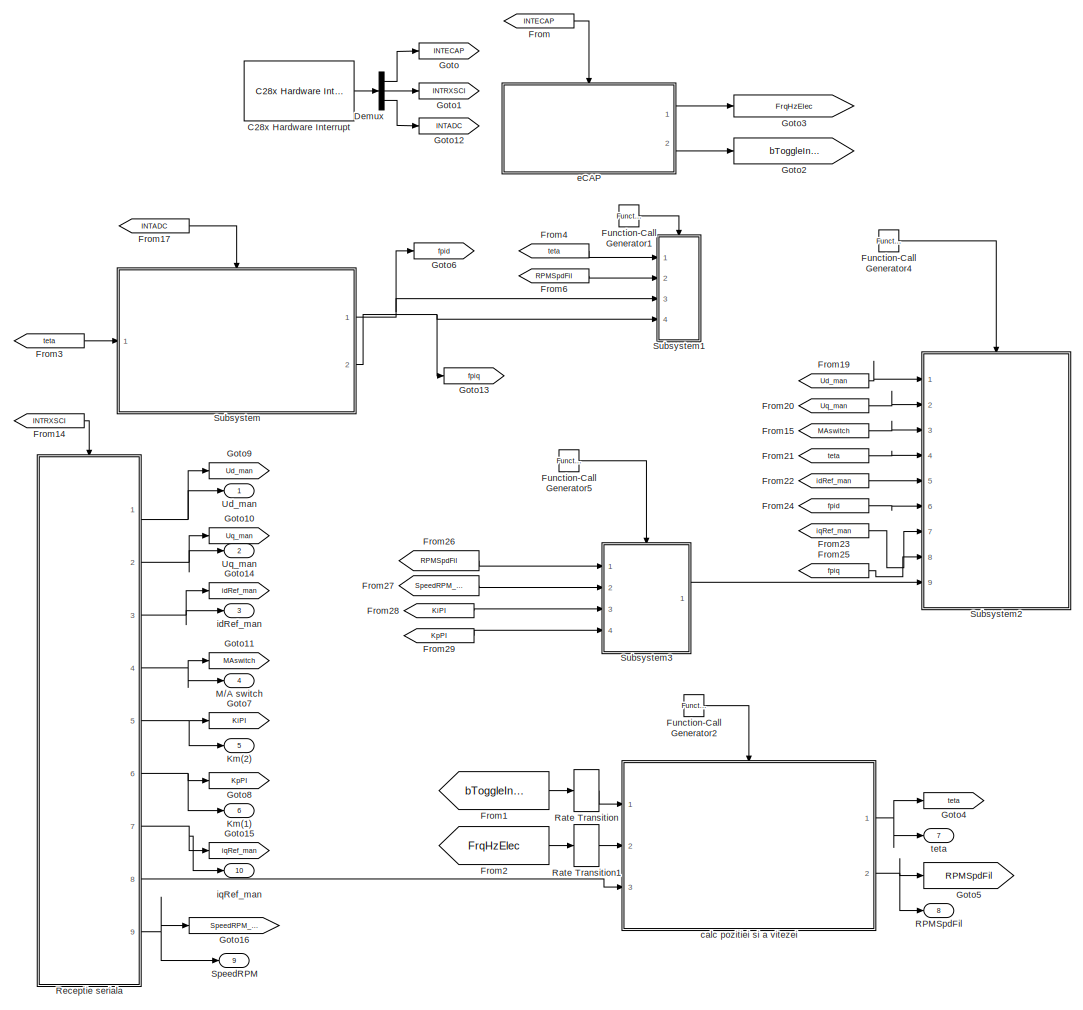
[diagram: root canvas - part 1/2, center side, full height]
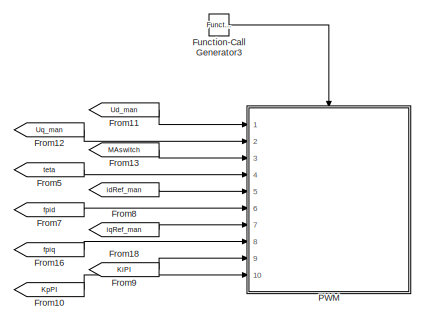
[diagram: root canvas - part 2/2, middle left region]
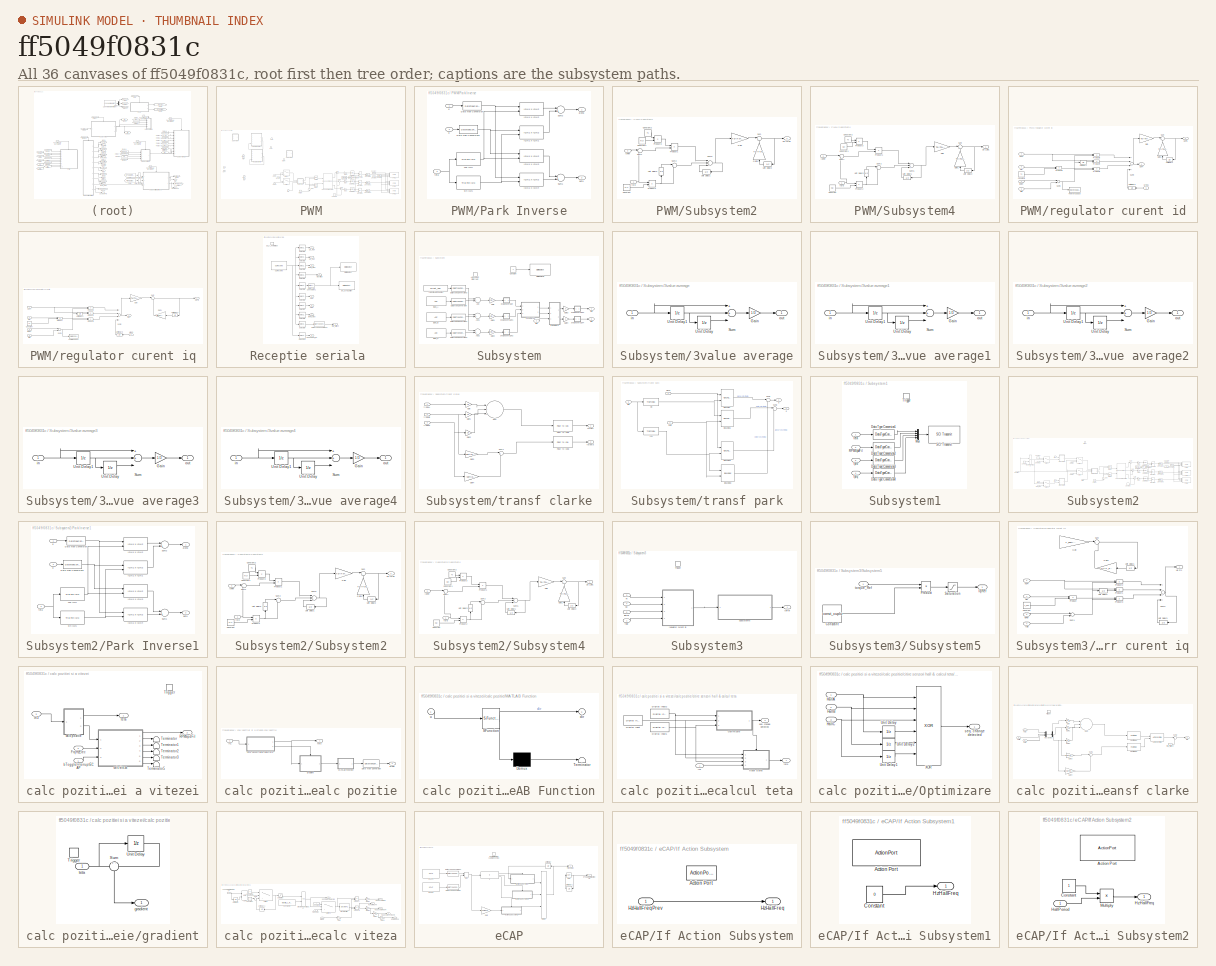
[diagram: thumbnail index - all 36 canvases of the model, root first then tree order]
MODEL slx_ff5049f0831c
KIND model
CONFIG AbsTol = auto
CONFIG EnableMultiTasking = on
CONFIG FixedStep = auto
CONFIG MaxStep = auto
CONFIG MinStep = auto
CONFIG RelTol = 1e-3
CONFIG SampleTimeConstraint = Unconstrained
CONFIG Solver = FixedStepDiscrete
CONFIG SolverName = FixedStepDiscrete
CONFIG StartTime = 0.0
CONFIG StopTime = Inf
BLOCK [Reference] C28x Hardware Interrupt  REF=c2000lib/Scheduling/C28x Hardware Interrupt
  Ports = [0, 1]
  SourceBlock = c2000lib/Scheduling/C28x Hardware Interrupt
  SourceProductBaseCode = TIC2000
  SourceType = C28x Interrupt Block
BLOCK [Demux] Demux
  DisplayOption = bar
  Outputs = 3
  Ports = [1, 3]
BLOCK [From] From
  GotoTag = INTECAP
BLOCK [From] From1
  GotoTag = bToggleInterruptECAP
BLOCK [From] From10
  Commented = on
  GotoTag = KpPI
BLOCK [From] From11
  Commented = on
  GotoTag = Ud_man
BLOCK [From] From12
  Commented = on
  GotoTag = Uq_man
BLOCK [From] From13
  Commented = on
  GotoTag = MAswitch
BLOCK [From] From14
  GotoTag = INTRXSCI
BLOCK [From] From15
  GotoTag = MAswitch
BLOCK [From] From16
  Commented = on
  GotoTag = fpiq
BLOCK [From] From17
  GotoTag = INTADC
BLOCK [From] From18
  Commented = on
  GotoTag = iqRef_man
BLOCK [From] From19
  GotoTag = Ud_man
BLOCK [From] From2
  GotoTag = FrqHzElec
BLOCK [From] From20
  GotoTag = Uq_man
BLOCK [From] From21
  GotoTag = teta
BLOCK [From] From22
  GotoTag = idRef_man
BLOCK [From] From23
  GotoTag = iqRef_man
BLOCK [From] From24
  GotoTag = fpid
BLOCK [From] From25
  GotoTag = fpiq
BLOCK [From] From26
  GotoTag = RPMSpdFil
BLOCK [From] From27
  GotoTag = SpeedRPM_ref
BLOCK [From] From28
  GotoTag = KiPI
BLOCK [From] From29
  GotoTag = KpPI
BLOCK [From] From3
  GotoTag = teta
BLOCK [From] From4
  GotoTag = teta
BLOCK [From] From5
  Commented = on
  GotoTag = teta
BLOCK [From] From6
  GotoTag = RPMSpdFil
BLOCK [From] From7
  Commented = on
  GotoTag = fpid
BLOCK [From] From8
  Commented = on
  GotoTag = idRef_man
BLOCK [From] From9
  Commented = on
  GotoTag = KiPI
BLOCK [Reference] Function-Call Generator1  REF=simulink/Ports &
Subsystems/Function-Call
Generator
  Ports = [0, 1]
  SourceBlock = simulink/Ports &\nSubsystems/Function-Call\nGenerator
  SourceProductBaseCode = SL
  SourceType = Function-Call Generator
BLOCK [Reference] Function-Call Generator2  REF=simulink/Ports &
Subsystems/Function-Call
Generator
  Ports = [0, 1]
  SourceBlock = simulink/Ports &\nSubsystems/Function-Call\nGenerator
  SourceProductBaseCode = SL
  SourceType = Function-Call Generator
BLOCK [Reference] Function-Call Generator3  REF=simulink/Ports &
Subsystems/Function-Call
Generator
  Commented = on
  Ports = [0, 1]
  SourceBlock = simulink/Ports &\nSubsystems/Function-Call\nGenerator
  SourceProductBaseCode = SL
  SourceType = Function-Call Generator
BLOCK [Reference] Function-Call Generator4  REF=simulink/Ports &
Subsystems/Function-Call
Generator
  Ports = [0, 1]
  SourceBlock = simulink/Ports &\nSubsystems/Function-Call\nGenerator
  SourceProductBaseCode = SL
  SourceType = Function-Call Generator
BLOCK [Reference] Function-Call Generator5  REF=simulink/Ports &
Subsystems/Function-Call
Generator
  Ports = [0, 1]
  SourceBlock = simulink/Ports &\nSubsystems/Function-Call\nGenerator
  SourceProductBaseCode = SL
  SourceType = Function-Call Generator
BLOCK [Goto] Goto
  GotoTag = INTECAP
BLOCK [Goto] Goto1
  GotoTag = INTRXSCI
BLOCK [Goto] Goto10
  GotoTag = Uq_man
BLOCK [Goto] Goto11
  GotoTag = MAswitch
BLOCK [Goto] Goto12
  GotoTag = INTADC
BLOCK [Goto] Goto13
  GotoTag = fpiq
BLOCK [Goto] Goto14
  GotoTag = idRef_man
BLOCK [Goto] Goto15
  GotoTag = iqRef_man
BLOCK [Goto] Goto16
  GotoTag = SpeedRPM_ref
BLOCK [Goto] Goto2
  GotoTag = bToggleInterruptECAP
BLOCK [Goto] Goto3
  GotoTag = FrqHzElec
BLOCK [Goto] Goto4
  GotoTag = teta
BLOCK [Goto] Goto5
  GotoTag = RPMSpdFil
BLOCK [Goto] Goto6
  GotoTag = fpid
BLOCK [Goto] Goto7
  GotoTag = KiPI
BLOCK [Goto] Goto8
  GotoTag = KpPI
BLOCK [Goto] Goto9
  GotoTag = Ud_man
BLOCK [Outport] Km(1)
  IconDisplay = Port number
  Port = 6
  VectorParamsAs1DForOutWhenUnconnected = on
BLOCK [Outport] Km(2)
  IconDisplay = Port number
  Port = 5
  VectorParamsAs1DForOutWhenUnconnected = on
BLOCK [Outport] M//A switch
  IconDisplay = Port number
  Port = 4
  VectorParamsAs1DForOutWhenUnconnected = on
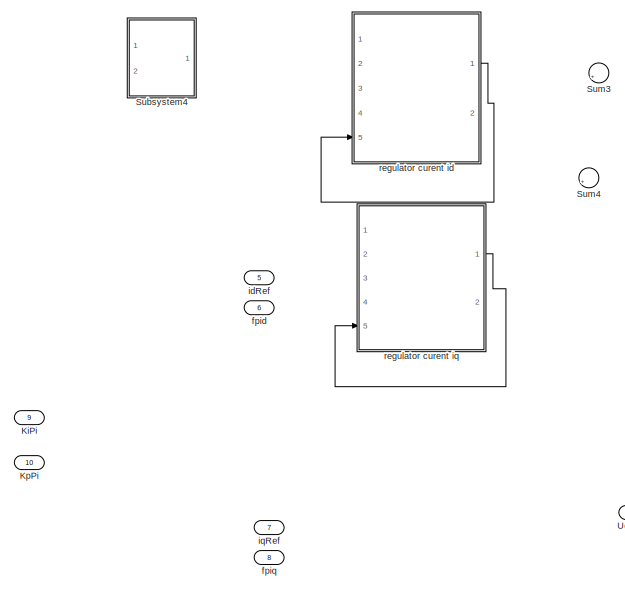
[diagram: PWM - part 1/2, middle left region]
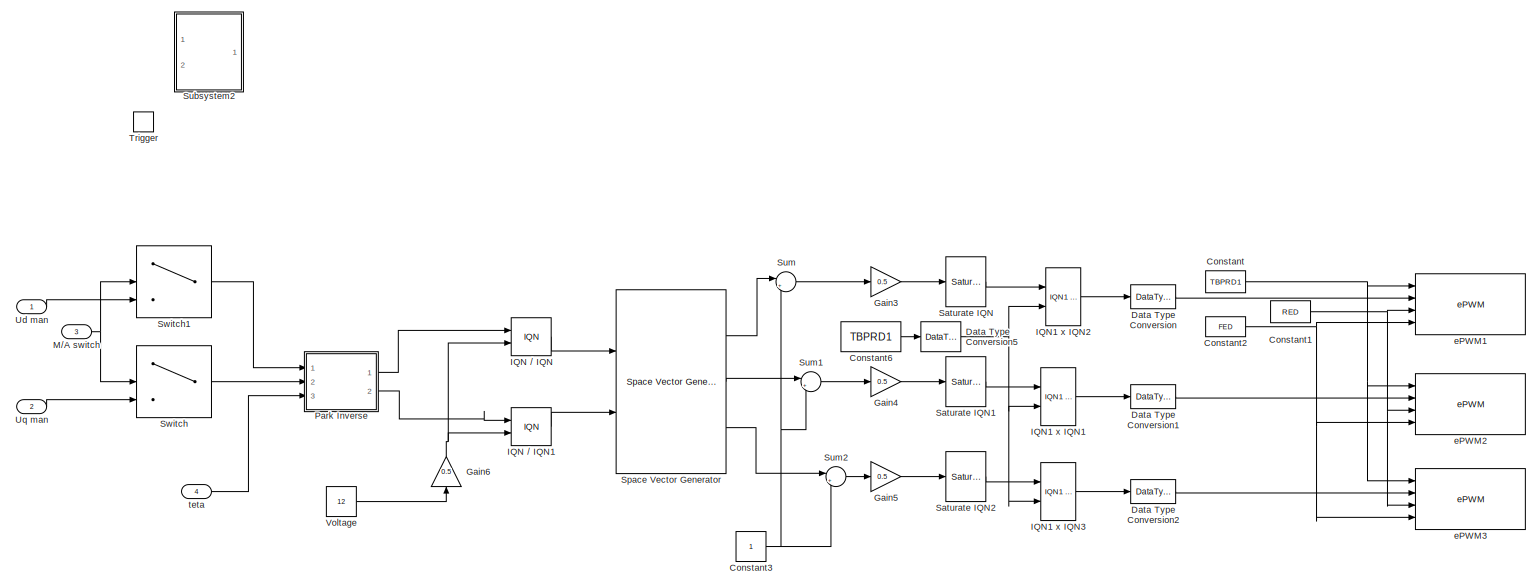
[diagram: PWM - part 2/2, central region]
BLOCK [SubSystem] PWM
  Commented = on
  Ports = [10, 0, 0, 1]
  RequestExecContextInheritance = off
BLOCK [Constant] PWM/Constant
  Value = TBPRD1
BLOCK [Constant] PWM/Constant1
  Value = RED
BLOCK [Constant] PWM/Constant2
  Value = FED
BLOCK [Constant] PWM/Constant3
  OutDataTypeStr = fixdt(1,32,24)
BLOCK [Constant] PWM/Constant6
  Value = TBPRD1
BLOCK [DataTypeConversion] PWM/Data Type Conversion
  OutDataTypeStr = uint16
  RndMeth = Floor
  SaturateOnIntegerOverflow = off
BLOCK [DataTypeConversion] PWM/Data Type Conversion1
  OutDataTypeStr = uint16
  RndMeth = Floor
  SaturateOnIntegerOverflow = off
BLOCK [DataTypeConversion] PWM/Data Type Conversion2
  OutDataTypeStr = uint16
  RndMeth = Floor
  SaturateOnIntegerOverflow = off
BLOCK [DataTypeConversion] PWM/Data Type Conversion5
  OutDataTypeStr = fixdt(1,32,18)
  RndMeth = Floor
  SaturateOnIntegerOverflow = off
BLOCK [Gain] PWM/Gain3
  Gain = 0.5
  ParamDataTypeStr = Inherit: Inherit via internal rule
  SaturateOnIntegerOverflow = off
BLOCK [Gain] PWM/Gain4
  Gain = 0.5
  ParamDataTypeStr = Inherit: Inherit via internal rule
  SaturateOnIntegerOverflow = off
BLOCK [Gain] PWM/Gain5
  Gain = 0.5
  ParamDataTypeStr = Inherit: Inherit via internal rule
  SaturateOnIntegerOverflow = off
BLOCK [Gain] PWM/Gain6
  Gain = 0.5
  ParamDataTypeStr = Inherit: Inherit via internal rule
  SaturateOnIntegerOverflow = off
BLOCK [Reference] PWM/IQN // IQN  REF=tiiqmathlib/IQN // IQN
  Ports = [2, 1]
  SourceBlock = tiiqmathlib/IQN // IQN
  SourceProductBaseCode = TIC2000
  SourceProductName = Embedded Coder Support Package for Texas Instruments C2000 Processors
  SourceType = Division IQN
BLOCK [Reference] PWM/IQN // IQN1  REF=tiiqmathlib/IQN // IQN
  Ports = [2, 1]
  SourceBlock = tiiqmathlib/IQN // IQN
  SourceProductBaseCode = TIC2000
  SourceProductName = Embedded Coder Support Package for Texas Instruments C2000 Processors
  SourceType = Division IQN
BLOCK [Reference] PWM/IQN1 x IQN1  REF=tiiqmathlib/IQN1 x IQN2
  Ports = [2, 1]
  SourceBlock = tiiqmathlib/IQN1 x IQN2
  SourceProductBaseCode = TIC2000
  SourceProductName = Embedded Coder Support Package for Texas Instruments C2000 Processors
  SourceType = IQN1 x IQN2
BLOCK [Reference] PWM/IQN1 x IQN2  REF=tiiqmathlib/IQN1 x IQN2
  Ports = [2, 1]
  SourceBlock = tiiqmathlib/IQN1 x IQN2
  SourceProductBaseCode = TIC2000
  SourceProductName = Embedded Coder Support Package for Texas Instruments C2000 Processors
  SourceType = IQN1 x IQN2
BLOCK [Reference] PWM/IQN1 x IQN3  REF=tiiqmathlib/IQN1 x IQN2
  Ports = [2, 1]
  SourceBlock = tiiqmathlib/IQN1 x IQN2
  SourceProductBaseCode = TIC2000
  SourceProductName = Embedded Coder Support Package for Texas Instruments C2000 Processors
  SourceType = IQN1 x IQN2
BLOCK [Inport] PWM/KiPi
  IconDisplay = Port number
  Port = 9
BLOCK [Inport] PWM/KpPi
  IconDisplay = Port number
  Port = 10
BLOCK [Inport] PWM/M//A switch
  IconDisplay = Port number
  Port = 3
BLOCK [SubSystem] PWM/Park Inverse
  Ports = [3, 2]
  RequestExecContextInheritance = off
BLOCK [DataTypeConversion] PWM/Park Inverse/Data Type Conversion
  OutDataTypeStr = fixdt(1,32,20)
  RndMeth = Floor
  SaturateOnIntegerOverflow = off
BLOCK [DataTypeConversion] PWM/Park Inverse/Data Type Conversion1
  OutDataTypeStr = fixdt(1,32,20)
  RndMeth = Floor
  SaturateOnIntegerOverflow = off
BLOCK [Reference] PWM/Park Inverse/IQN1 x IQN1  REF=tiiqmathlib/IQN1 x IQN2
  Ports = [2, 1]
  SourceBlock = tiiqmathlib/IQN1 x IQN2
  SourceProductBaseCode = TIC2000
  SourceProductName = Embedded Coder Support Package for Texas Instruments C2000 Processors
  SourceType = IQN1 x IQN2
BLOCK [Reference] PWM/Park Inverse/IQN1 x IQN2  REF=tiiqmathlib/IQN1 x IQN2
  Ports = [2, 1]
  SourceBlock = tiiqmathlib/IQN1 x IQN2
  SourceProductBaseCode = TIC2000
  SourceProductName = Embedded Coder Support Package for Texas Instruments C2000 Processors
  SourceType = IQN1 x IQN2
BLOCK [Reference] PWM/Park Inverse/IQN1 x IQN3  REF=tiiqmathlib/IQN1 x IQN2
  Ports = [2, 1]
  SourceBlock = tiiqmathlib/IQN1 x IQN2
  SourceProductBaseCode = TIC2000
  SourceProductName = Embedded Coder Support Package for Texas Instruments C2000 Processors
  SourceType = IQN1 x IQN2
BLOCK [Reference] PWM/Park Inverse/IQN1 x IQN4  REF=tiiqmathlib/IQN1 x IQN2
  Ports = [2, 1]
  SourceBlock = tiiqmathlib/IQN1 x IQN2
  SourceProductBaseCode = TIC2000
  SourceProductName = Embedded Coder Support Package for Texas Instruments C2000 Processors
  SourceType = IQN1 x IQN2
BLOCK [Sum] PWM/Park Inverse/Sum1
  AccumDataTypeStr = Inherit: Same as first input
  InputSameDT = off
  Inputs = |++
  Ports = [2, 1]
  SaturateOnIntegerOverflow = off
BLOCK [Sum] PWM/Park Inverse/Sum2
  AccumDataTypeStr = Inherit: Same as first input
  InputSameDT = off
  Inputs = |+-
  Ports = [2, 1]
  SaturateOnIntegerOverflow = off
BLOCK [Outport] PWM/Park Inverse/alpha
  IconDisplay = Port number
BLOCK [Outport] PWM/Park Inverse/beta
  IconDisplay = Port number
  Port = 2
BLOCK [Reference] PWM/Park Inverse/cos IQN  REF=tiiqmathlib/Trig Fcn IQN
  Ports = [1, 1]
  SourceBlock = tiiqmathlib/Trig Fcn IQN
  SourceProductBaseCode = TIC2000
  SourceProductName = Embedded Coder Support Package for Texas Instruments C2000 Processors
  SourceType = Trig Fcn IQN
BLOCK [Inport] PWM/Park Inverse/d
  IconDisplay = Port number
BLOCK [Inport] PWM/Park Inverse/q
  IconDisplay = Port number
  Port = 2
BLOCK [Reference] PWM/Park Inverse/sin IQN  REF=tiiqmathlib/Trig Fcn IQN
  Ports = [1, 1]
  SourceBlock = tiiqmathlib/Trig Fcn IQN
  SourceProductBaseCode = TIC2000
  SourceProductName = Embedded Coder Support Package for Texas Instruments C2000 Processors
  SourceType = Trig Fcn IQN
BLOCK [Inport] PWM/Park Inverse/teta
  IconDisplay = Port number
  Port = 3
BLOCK [Reference] PWM/Saturate IQN  REF=tiiqmathlib/Saturate IQN
  Ports = [1, 1]
  SourceBlock = tiiqmathlib/Saturate IQN
  SourceProductBaseCode = TIC2000
  SourceProductName = Embedded Coder Support Package for Texas Instruments C2000 Processors
  SourceType = Saturate IQN
BLOCK [Reference] PWM/Saturate IQN1  REF=tiiqmathlib/Saturate IQN
  Ports = [1, 1]
  SourceBlock = tiiqmathlib/Saturate IQN
  SourceProductBaseCode = TIC2000
  SourceProductName = Embedded Coder Support Package for Texas Instruments C2000 Processors
  SourceType = Saturate IQN
BLOCK [Reference] PWM/Saturate IQN2  REF=tiiqmathlib/Saturate IQN
  Ports = [1, 1]
  SourceBlock = tiiqmathlib/Saturate IQN
  SourceProductBaseCode = TIC2000
  SourceProductName = Embedded Coder Support Package for Texas Instruments C2000 Processors
  SourceType = Saturate IQN
BLOCK [Reference] PWM/Space Vector Generator  REF=c28xdmclib/Space Vector
Generator
  Ports = [2, 3]
  SourceBlock = c28xdmclib/Space Vector\nGenerator
  SourceProductBaseCode = TIC2000
  SourceProductName = Embedded Coder Support Package for Texas Instruments C2000 Processors
  SourceType = Space Vector Generator
BLOCK [SubSystem] PWM/Subsystem2
  Ports = [2, 1]
  RequestExecContextInheritance = off
BLOCK [Constant] PWM/Subsystem2/Constant
  Value = K(1)
BLOCK [Constant] PWM/Subsystem2/Constant1
  Value = K(2)
BLOCK [Constant] PWM/Subsystem2/Constant2
  Value = Ts
BLOCK [Gain] PWM/Subsystem2/Gain
  Gain = Ts/(Ts+Tf)
  OutDataTypeStr = Inherit: Inherit via internal rule
  ParamDataTypeStr = Inherit: Inherit via internal rule
  SaturateOnIntegerOverflow = off
BLOCK [Gain] PWM/Subsystem2/Gain1
  Gain = Tf/(Ts+Tf)
  OutDataTypeStr = Inherit: Inherit via internal rule
  ParamDataTypeStr = Inherit: Inherit via internal rule
  SaturateOnIntegerOverflow = off
BLOCK [Inport] PWM/Subsystem2/IqRef
  IconDisplay = Port number
  Port = 2
BLOCK [Product] PWM/Subsystem2/Product1
  InputSameDT = off
  OutDataTypeStr = Inherit: Inherit via internal rule
  Ports = [2, 1]
  RndMeth = Floor
  SaturateOnIntegerOverflow = off
BLOCK [Product] PWM/Subsystem2/Product2
  InputSameDT = off
  OutDataTypeStr = Inherit: Inherit via internal rule
  Ports = [2, 1]
  RndMeth = Floor
  SaturateOnIntegerOverflow = off
BLOCK [Product] PWM/Subsystem2/Product3
  InputSameDT = off
  OutDataTypeStr = Inherit: Inherit via internal rule
  Ports = [2, 1]
  RndMeth = Floor
  SaturateOnIntegerOverflow = off
BLOCK [Sum] PWM/Subsystem2/Sum
  IconShape = round
  InputSameDT = off
  Inputs = |++
  OutDataTypeStr = Inherit: Inherit via internal rule
  Ports = [2, 1]
  SaturateOnIntegerOverflow = off
BLOCK [Sum] PWM/Subsystem2/Sum1
  IconShape = round
  InputSameDT = off
  Inputs = |+-
  OutDataTypeStr = Inherit: Inherit via internal rule
  Ports = [2, 1]
  SaturateOnIntegerOverflow = off
BLOCK [Sum] PWM/Subsystem2/Sum2
  IconShape = round
  InputSameDT = off
  Inputs = |+-
  OutDataTypeStr = Inherit: Inherit via internal rule
  Ports = [2, 1]
  SaturateOnIntegerOverflow = off
BLOCK [Sum] PWM/Subsystem2/Sum5
  InputSameDT = off
  Inputs = |-++
  OutDataTypeStr = Inherit: Inherit via internal rule
  Ports = [3, 1]
  SaturateOnIntegerOverflow = off
BLOCK [UnitDelay] PWM/Subsystem2/Unit Delay1
  InputProcessing = Elements as channels (sample based)
  SampleTime = -1
BLOCK [UnitDelay] PWM/Subsystem2/Unit Delay2
  InputProcessing = Elements as channels (sample based)
  SampleTime = -1
BLOCK [UnitDelay] PWM/Subsystem2/Unit Delay3
  InputProcessing = Elements as channels (sample based)
  SampleTime = -1
BLOCK [Outport] PWM/Subsystem2/Uq LQR1
  IconDisplay = Port number
BLOCK [Inport] PWM/Subsystem2/fpIq
  IconDisplay = Port number
BLOCK [SubSystem] PWM/Subsystem4
  Ports = [2, 1]
  RequestExecContextInheritance = off
BLOCK [Constant] PWM/Subsystem4/Constant
  Value = K(1)
BLOCK [Constant] PWM/Subsystem4/Constant1
  Value = K(2)
BLOCK [Constant] PWM/Subsystem4/Constant2
  Value = Ts
BLOCK [Gain] PWM/Subsystem4/Gain
  Gain = Ts/(Ts+Tf)
  OutDataTypeStr = Inherit: Inherit via internal rule
  ParamDataTypeStr = Inherit: Inherit via internal rule
  SaturateOnIntegerOverflow = off
BLOCK [Gain] PWM/Subsystem4/Gain1
  Gain = Tf/(Ts+Tf)
  OutDataTypeStr = Inherit: Inherit via internal rule
  ParamDataTypeStr = Inherit: Inherit via internal rule
  SaturateOnIntegerOverflow = off
BLOCK [Inport] PWM/Subsystem4/IdRef
  IconDisplay = Port number
  Port = 2
BLOCK [Product] PWM/Subsystem4/Product1
  InputSameDT = off
  OutDataTypeStr = Inherit: Inherit via internal rule
  Ports = [2, 1]
  RndMeth = Floor
  SaturateOnIntegerOverflow = off
BLOCK [Product] PWM/Subsystem4/Product2
  InputSameDT = off
  OutDataTypeStr = Inherit: Inherit via internal rule
  Ports = [2, 1]
  RndMeth = Floor
  SaturateOnIntegerOverflow = off
BLOCK [Product] PWM/Subsystem4/Product3
  InputSameDT = off
  OutDataTypeStr = Inherit: Inherit via internal rule
  Ports = [2, 1]
  RndMeth = Floor
  SaturateOnIntegerOverflow = off
BLOCK [Sum] PWM/Subsystem4/Sum
  IconShape = round
  InputSameDT = off
  Inputs = |++
  OutDataTypeStr = Inherit: Inherit via internal rule
  Ports = [2, 1]
  SaturateOnIntegerOverflow = off
BLOCK [Sum] PWM/Subsystem4/Sum1
  IconShape = round
  InputSameDT = off
  Inputs = |+-
  OutDataTypeStr = Inherit: Inherit via internal rule
  Ports = [2, 1]
  SaturateOnIntegerOverflow = off
BLOCK [Sum] PWM/Subsystem4/Sum2
  IconShape = round
  InputSameDT = off
  Inputs = |+-
  OutDataTypeStr = Inherit: Inherit via internal rule
  Ports = [2, 1]
  SaturateOnIntegerOverflow = off
BLOCK [Sum] PWM/Subsystem4/Sum5
  InputSameDT = off
  Inputs = |-++
  OutDataTypeStr = Inherit: Inherit via internal rule
  Ports = [3, 1]
  SaturateOnIntegerOverflow = off
BLOCK [Outport] PWM/Subsystem4/Ud LQR1
  IconDisplay = Port number
BLOCK [UnitDelay] PWM/Subsystem4/Unit Delay1
  InputProcessing = Elements as channels (sample based)
  SampleTime = -1
BLOCK [UnitDelay] PWM/Subsystem4/Unit Delay2
  InputProcessing = Elements as channels (sample based)
  SampleTime = -1
BLOCK [UnitDelay] PWM/Subsystem4/Unit Delay3
  InputProcessing = Elements as channels (sample based)
  SampleTime = -1
BLOCK [Inport] PWM/Subsystem4/fpId
  IconDisplay = Port number
BLOCK [Sum] PWM/Sum
  IconShape = round
  InputSameDT = off
  Inputs = |++
  OutDataTypeStr = Inherit: Inherit via internal rule
  Ports = [2, 1]
  SaturateOnIntegerOverflow = off
BLOCK [Sum] PWM/Sum1
  IconShape = round
  InputSameDT = off
  Inputs = |++
  OutDataTypeStr = Inherit: Inherit via internal rule
  Ports = [2, 1]
  SaturateOnIntegerOverflow = off
BLOCK [Sum] PWM/Sum2
  IconShape = round
  InputSameDT = off
  Inputs = |++
  OutDataTypeStr = Inherit: Inherit via internal rule
  Ports = [2, 1]
  SaturateOnIntegerOverflow = off
BLOCK [Sum] PWM/Sum3
  IconShape = round
  InputSameDT = off
  Inputs = |+-
  OutDataTypeStr = Inherit: Inherit via internal rule
  Ports = [2, 1]
  SaturateOnIntegerOverflow = off
BLOCK [Sum] PWM/Sum4
  IconShape = round
  InputSameDT = off
  Inputs = |++
  OutDataTypeStr = Inherit: Inherit via internal rule
  Ports = [2, 1]
  SaturateOnIntegerOverflow = off
BLOCK [Switch] PWM/Switch
  Criteria = u2 > Threshold
  InputSameDT = off
  SaturateOnIntegerOverflow = off
BLOCK [Switch] PWM/Switch1
  Criteria = u2 > Threshold
  InputSameDT = off
  SaturateOnIntegerOverflow = off
BLOCK [TriggerPort] PWM/Trigger
  PortDimensions = 1
  Ports = []
  StatesWhenEnabling = held
  TriggerType = function-call
  VariantControl = Variant
BLOCK [Inport] PWM/Ud man
  IconDisplay = Port number
BLOCK [Inport] PWM/Uq man 
  IconDisplay = Port number
  Port = 2
BLOCK [Constant] PWM/Voltage 
  OutDataTypeStr = fixdt(1,32,20)
  Value = 12
BLOCK [Reference] PWM/ePWM1  REF=c2802xlib/ePWM
  Ports = [4]
  SourceBlock = c2802xlib/ePWM
  SourceProductBaseCode = TIC2000
  SourceProductName = Embedded Coder Support Package for Texas Instruments C2000 Processors
  SourceType = C2802x/03x/05x/06x/M3x/37x/07x/004x ePWM
  UserDataPersistent = on
BLOCK [Reference] PWM/ePWM2  REF=c2802xlib/ePWM
  Ports = [4]
  SourceBlock = c2802xlib/ePWM
  SourceProductBaseCode = TIC2000
  SourceProductName = Embedded Coder Support Package for Texas Instruments C2000 Processors
  SourceType = C2802x/03x/05x/06x/M3x/37x/07x/004x ePWM
  UserDataPersistent = on
BLOCK [Reference] PWM/ePWM3  REF=c2802xlib/ePWM
  Ports = [4]
  SourceBlock = c2802xlib/ePWM
  SourceProductBaseCode = TIC2000
  SourceProductName = Embedded Coder Support Package for Texas Instruments C2000 Processors
  SourceType = C2802x/03x/05x/06x/M3x/37x/07x/004x ePWM
  UserDataPersistent = on
BLOCK [Inport] PWM/fpid
  IconDisplay = Port number
  Port = 6
BLOCK [Inport] PWM/fpiq
  IconDisplay = Port number
  Port = 8
BLOCK [Inport] PWM/idRef
  IconDisplay = Port number
  Port = 5
BLOCK [Inport] PWM/iqRef
  IconDisplay = Port number
  Port = 7
BLOCK [SubSystem] PWM/regulator curent id
  Ports = [5, 2]
  RequestExecContextInheritance = off
BLOCK [Constant] PWM/regulator curent id/Constant1
  OutDataTypeStr = single
  SampleTime = -1
  Value = Ts
BLOCK [Gain] PWM/regulator curent id/Gain
  Gain = Ts/(Ts+Tf)
  OutDataTypeStr = Inherit: Inherit via internal rule
  ParamDataTypeStr = Inherit: Inherit via internal rule
  SaturateOnIntegerOverflow = off
BLOCK [Gain] PWM/regulator curent id/Gain1
  Gain = Tf/(Ts+Tf)
  OutDataTypeStr = Inherit: Inherit via internal rule
  ParamDataTypeStr = Inherit: Inherit via internal rule
  SaturateOnIntegerOverflow = off
BLOCK [Inport] PWM/regulator curent id/KiPI
  IconDisplay = Port number
  Port = 3
BLOCK [Inport] PWM/regulator curent id/KpPI
  IconDisplay = Port number
  Port = 4
BLOCK [Product] PWM/regulator curent id/Product3
  InputSameDT = off
  OutDataTypeStr = Inherit: Inherit via internal rule
  Ports = [2, 1]
  RndMeth = Floor
  SaturateOnIntegerOverflow = off
BLOCK [Product] PWM/regulator curent id/Product4
  InputSameDT = off
  OutDataTypeStr = Inherit: Inherit via internal rule
  Ports = [2, 1]
  RndMeth = Floor
  SaturateOnIntegerOverflow = off
BLOCK [Product] PWM/regulator curent id/Product5
  InputSameDT = off
  OutDataTypeStr = Inherit: Inherit via internal rule
  Ports = [2, 1]
  RndMeth = Floor
  SaturateOnIntegerOverflow = off
BLOCK [Product] PWM/regulator curent id/Product6
  InputSameDT = off
  OutDataTypeStr = Inherit: Inherit via internal rule
  Ports = [2, 1]
  RndMeth = Floor
  SaturateOnIntegerOverflow = off
BLOCK [Sum] PWM/regulator curent id/Sum
  IconShape = round
  InputSameDT = off
  Inputs = |++
  OutDataTypeStr = Inherit: Inherit via internal rule
  Ports = [2, 1]
  SaturateOnIntegerOverflow = off
BLOCK [Sum] PWM/regulator curent id/Sum3
  InputSameDT = off
  Inputs = |+-
  OutDataTypeStr = Inherit: Inherit via internal rule
  Ports = [2, 1]
  SaturateOnIntegerOverflow = off
BLOCK [Sum] PWM/regulator curent id/Sum4
  InputSameDT = off
  Inputs = +-++
  OutDataTypeStr = Inherit: Inherit via internal rule
  Ports = [4, 1]
  SaturateOnIntegerOverflow = off
BLOCK [ToWorkspace] PWM/regulator curent id/To Workspace
  FixptAsFi = on
  MaxDataPoints = inf
  Ports = [1]
  SampleTime = -1
  Save2DSignal = 3-D array (concatenate along third dimension)
  SaveFormat = Timeseries
  VariableName = Ed
BLOCK [Outport] PWM/regulator curent id/Ud PI
  IconDisplay = Port number
BLOCK [Outport] PWM/regulator curent id/Ud PI1
  IconDisplay = Port number
  Port = 2
BLOCK [UnitDelay] PWM/regulator curent id/Unit Delay1
  InputProcessing = Elements as channels (sample based)
  SampleTime = -1
BLOCK [UnitDelay] PWM/regulator curent id/Unit Delay2
  InputProcessing = Elements as channels (sample based)
  SampleTime = -1
BLOCK [UnitDelay] PWM/regulator curent id/Unit Delay3
  InputProcessing = Elements as channels (sample based)
  SampleTime = -1
BLOCK [Inport] PWM/regulator curent id/Ureg1
  IconDisplay = Port number
  Port = 5
BLOCK [Inport] PWM/regulator curent id/fpid
  IconDisplay = Port number
  Port = 2
BLOCK [Inport] PWM/regulator curent id/idRef
  IconDisplay = Port number
BLOCK [SubSystem] PWM/regulator curent iq
  Ports = [5, 2]
  RequestExecContextInheritance = off
BLOCK [Constant] PWM/regulator curent iq/Constant
  OutDataTypeStr = single
  SampleTime = -1
  Value = Ts
BLOCK [Gain] PWM/regulator curent iq/Gain
  Gain = Ts/(Ts+Tf)
  OutDataTypeStr = Inherit: Inherit via internal rule
  ParamDataTypeStr = Inherit: Inherit via internal rule
  SaturateOnIntegerOverflow = off
BLOCK [Gain] PWM/regulator curent iq/Gain1
  Gain = Tf/(Ts+Tf)
  OutDataTypeStr = Inherit: Inherit via internal rule
  ParamDataTypeStr = Inherit: Inherit via internal rule
  SaturateOnIntegerOverflow = off
BLOCK [Inport] PWM/regulator curent iq/KiPI
  IconDisplay = Port number
BLOCK [Inport] PWM/regulator curent iq/KpPI
  IconDisplay = Port number
  Port = 2
BLOCK [Product] PWM/regulator curent iq/Product
  InputSameDT = off
  OutDataTypeStr = Inherit: Inherit via internal rule
  Ports = [2, 1]
  RndMeth = Floor
  SaturateOnIntegerOverflow = off
BLOCK [Product] PWM/regulator curent iq/Product1
  InputSameDT = off
  OutDataTypeStr = Inherit: Inherit via internal rule
  Ports = [2, 1]
  RndMeth = Floor
  SaturateOnIntegerOverflow = off
BLOCK [Product] PWM/regulator curent iq/Product2
  InputSameDT = off
  OutDataTypeStr = Inherit: Inherit via internal rule
  Ports = [2, 1]
  RndMeth = Floor
  SaturateOnIntegerOverflow = off
BLOCK [Product] PWM/regulator curent iq/Product3
  InputSameDT = off
  OutDataTypeStr = Inherit: Inherit via internal rule
  Ports = [2, 1]
  RndMeth = Floor
  SaturateOnIntegerOverflow = off
BLOCK [Sum] PWM/regulator curent iq/Sum
  IconShape = round
  InputSameDT = off
  Inputs = |++
  OutDataTypeStr = Inherit: Inherit via internal rule
  Ports = [2, 1]
  SaturateOnIntegerOverflow = off
BLOCK [Sum] PWM/regulator curent iq/Sum1
  InputSameDT = off
  Inputs = |+-
  OutDataTypeStr = Inherit: Inherit via internal rule
  Ports = [2, 1]
  SaturateOnIntegerOverflow = off
BLOCK [Sum] PWM/regulator curent iq/Sum2
  InputSameDT = off
  Inputs = +-++
  OutDataTypeStr = Inherit: Inherit via internal rule
  Ports = [4, 1]
  SaturateOnIntegerOverflow = off
BLOCK [ToWorkspace] PWM/regulator curent iq/To Workspace
  FixptAsFi = on
  MaxDataPoints = inf
  Ports = [1]
  SampleTime = -1
  Save2DSignal = 3-D array (concatenate along third dimension)
  SaveFormat = Timeseries
  VariableName = Eq
BLOCK [Outport] PWM/regulator curent iq/U PI
  IconDisplay = Port number
BLOCK [UnitDelay] PWM/regulator curent iq/Unit Delay1
  InputProcessing = Elements as channels (sample based)
  SampleTime = -1
BLOCK [UnitDelay] PWM/regulator curent iq/Unit Delay2
  InputProcessing = Elements as channels (sample based)
  SampleTime = -1
BLOCK [UnitDelay] PWM/regulator curent iq/Unit Delay3
  InputProcessing = Elements as channels (sample based)
  SampleTime = -1
BLOCK [Outport] PWM/regulator curent iq/Uq PI1
  IconDisplay = Port number
  Port = 2
BLOCK [Inport] PWM/regulator curent iq/Ureg3
  IconDisplay = Port number
  Port = 5
BLOCK [Inport] PWM/regulator curent iq/fpiq
  IconDisplay = Port number
  Port = 4
BLOCK [Inport] PWM/regulator curent iq/iqRef
  IconDisplay = Port number
  Port = 3
BLOCK [Inport] PWM/teta 
  IconDisplay = Port number
  Port = 4
BLOCK [Outport] RPMSpdFil
  IconDisplay = Port number
  Port = 8
  VectorParamsAs1DForOutWhenUnconnected = on
BLOCK [RateTransition] Rate Transition
  Integrity = off
  OutPortSampleTime = T_pos
BLOCK [RateTransition] Rate Transition1
  Integrity = off
  OutPortSampleTime = T_pos
BLOCK [SubSystem] Receptie seriala 
  Ports = [0, 9, 0, 1]
  RequestExecContextInheritance = off
BLOCK [DataTypeConversion] Receptie seriala /Data Type Conversion1
  OutDataTypeStr = boolean
  RndMeth = Floor
  SaturateOnIntegerOverflow = off
BLOCK [DataTypeConversion] Receptie seriala /Data Type Conversion2
  OutDataTypeStr = fixdt(1,32,20)
  RndMeth = Floor
  SaturateOnIntegerOverflow = off
BLOCK [Reference] Receptie seriala /Digital Output  REF=c2837xDlib/Digital Output
  Ports = [1]
  SourceBlock = c2837xDlib/Digital Output
  SourceProductBaseCode = TIC2000
  SourceProductName = Embedded Coder Support Package for Texas Instruments C2000 Processors
  SourceType = F2837x GPIO Digital Output
  UserDataPersistent = on
BLOCK [Reference] Receptie seriala /EN_GATE Switch  REF=c2837xDlib/Digital Output
  Ports = [1]
  SourceBlock = c2837xDlib/Digital Output
  SourceProductBaseCode = TIC2000
  SourceProductName = Embedded Coder Support Package for Texas Instruments C2000 Processors
  SourceType = F2837x GPIO Digital Output
  UserDataPersistent = on
BLOCK [Outport] Receptie seriala /Km(1)
  IconDisplay = Port number
  Port = 6
  VectorParamsAs1DForOutWhenUnconnected = on
BLOCK [Outport] Receptie seriala /Km(2)
  IconDisplay = Port number
  Port = 5
  VectorParamsAs1DForOutWhenUnconnected = on
BLOCK [Outport] Receptie seriala /M//A switch
  IconDisplay = Port number
  Port = 4
  VectorParamsAs1DForOutWhenUnconnected = on
BLOCK [Reference] Receptie seriala /SCI Receive  REF=c280xlib/SCI Receive
  Ports = [0, 1]
  SourceBlock = c280xlib/SCI Receive
  SourceProductBaseCode = TIC2000
  SourceProductName = Embedded Coder Support Package for Texas Instruments C2000 Processors
  SourceType = C28x SCI Receive
BLOCK [TriggerPort] Receptie seriala /SCI_A_RX interrupt 
  PortDimensions = 1
  Ports = []
  StatesWhenEnabling = held
  TriggerType = function-call
  VariantControl = (inherit)
BLOCK [Selector] Receptie seriala /Selector1
  IndexOptions = Index vector (dialog)
  Indices = [4]
  InputPortWidth = serial_data_length
  OutputSizes = 1
  Ports = [1, 1]
BLOCK [Selector] Receptie seriala /Selector10
  IndexOptions = Index vector (dialog)
  Indices = [10]
  InputPortWidth = serial_data_length
  OutputSizes = 1
  Ports = [1, 1]
BLOCK [Selector] Receptie seriala /Selector2
  IndexOptions = Index vector (dialog)
  Indices = [6]
  InputPortWidth = serial_data_length
  OutputSizes = 1
  Ports = [1, 1]
BLOCK [Selector] Receptie seriala /Selector3
  IndexOptions = Index vector (dialog)
  Indices = [2]
  InputPortWidth = serial_data_length
  OutputSizes = 1
  Ports = [1, 1]
BLOCK [Selector] Receptie seriala /Selector4
  IndexOptions = Index vector (dialog)
  Indices = [1]
  InputPortWidth = serial_data_length
  OutputSizes = 1
  Ports = [1, 1]
BLOCK [Selector] Receptie seriala /Selector5
  IndexOptions = Index vector (dialog)
  Indices = [3]
  InputPortWidth = serial_data_length
  OutputSizes = 1
  Ports = [1, 1]
BLOCK [Selector] Receptie seriala /Selector6
  IndexOptions = Index vector (dialog)
  Indices = [5]
  InputPortWidth = serial_data_length
  OutputSizes = 1
  Ports = [1, 1]
BLOCK [Selector] Receptie seriala /Selector7
  IndexOptions = Index vector (dialog)
  Indices = [7]
  InputPortWidth = serial_data_length
  OutputSizes = 1
  Ports = [1, 1]
BLOCK [Selector] Receptie seriala /Selector8
  IndexOptions = Index vector (dialog)
  Indices = [8]
  InputPortWidth = serial_data_length
  OutputSizes = 1
  Ports = [1, 1]
BLOCK [Selector] Receptie seriala /Selector9
  IndexOptions = Index vector (dialog)
  Indices = [9]
  InputPortWidth = serial_data_length
  OutputSizes = 1
  Ports = [1, 1]
BLOCK [Outport] Receptie seriala /SpeedRPM_ref
  IconDisplay = Port number
  Port = 9
BLOCK [Outport] Receptie seriala /Ud_man
  IconDisplay = Port number
  VectorParamsAs1DForOutWhenUnconnected = on
BLOCK [Outport] Receptie seriala /Uq_man
  IconDisplay = Port number
  Port = 2
  VectorParamsAs1DForOutWhenUnconnected = on
BLOCK [Outport] Receptie seriala /idRef_man
  IconDisplay = Port number
  Port = 3
  VectorParamsAs1DForOutWhenUnconnected = on
BLOCK [Outport] Receptie seriala /iqRef_man
  IconDisplay = Port number
  Port = 7
  VectorParamsAs1DForOutWhenUnconnected = on
BLOCK [Outport] Receptie seriala /teta_allighn
  IconDisplay = Port number
  Port = 8
  VectorParamsAs1DForOutWhenUnconnected = on
BLOCK [Outport] SpeedRPM
  IconDisplay = Port number
  Port = 9
BLOCK [SubSystem] Subsystem
  Ports = [1, 2, 0, 1]
  RequestExecContextInheritance = off
BLOCK [SubSystem] Subsystem/3value average
  Ports = [1, 1]
  RequestExecContextInheritance = off
BLOCK [Gain] Subsystem/3value average/Gain
  Gain = 1/3
  OutDataTypeStr = fixdt(1,32,16)
  ParamDataTypeStr = Inherit: Inherit via internal rule
  SaturateOnIntegerOverflow = off
BLOCK [Sum] Subsystem/3value average/Sum
  InputSameDT = off
  Inputs = 3
  OutDataTypeStr = Inherit: Inherit via internal rule
  Ports = [3, 1]
  SaturateOnIntegerOverflow = off
BLOCK [UnitDelay] Subsystem/3value average/Unit Delay
  InputProcessing = Elements as channels (sample based)
  SampleTime = -1
BLOCK [UnitDelay] Subsystem/3value average/Unit Delay1
  InputProcessing = Elements as channels (sample based)
  SampleTime = -1
BLOCK [Inport] Subsystem/3value average/in
  IconDisplay = Port number
BLOCK [Outport] Subsystem/3value average/out
  IconDisplay = Port number
BLOCK [SubSystem] Subsystem/3value average1
  Ports = [1, 1]
  RequestExecContextInheritance = off
BLOCK [Gain] Subsystem/3value average1/Gain
  Gain = 1/3
  OutDataTypeStr = fixdt(1,32,16)
  ParamDataTypeStr = Inherit: Inherit via internal rule
  SaturateOnIntegerOverflow = off
BLOCK [Sum] Subsystem/3value average1/Sum
  InputSameDT = off
  Inputs = 3
  OutDataTypeStr = Inherit: Inherit via internal rule
  Ports = [3, 1]
  SaturateOnIntegerOverflow = off
BLOCK [UnitDelay] Subsystem/3value average1/Unit Delay
  InputProcessing = Elements as channels (sample based)
  SampleTime = -1
BLOCK [UnitDelay] Subsystem/3value average1/Unit Delay1
  InputProcessing = Elements as channels (sample based)
  SampleTime = -1
BLOCK [Inport] Subsystem/3value average1/in
  IconDisplay = Port number
BLOCK [Outport] Subsystem/3value average1/out
  IconDisplay = Port number
BLOCK [SubSystem] Subsystem/3value average2
  Ports = [1, 1]
  RequestExecContextInheritance = off
BLOCK [Gain] Subsystem/3value average2/Gain
  Gain = 1/3
  OutDataTypeStr = fixdt(1,32,16)
  ParamDataTypeStr = Inherit: Inherit via internal rule
  SaturateOnIntegerOverflow = off
BLOCK [Sum] Subsystem/3value average2/Sum
  InputSameDT = off
  Inputs = 3
  OutDataTypeStr = Inherit: Inherit via internal rule
  Ports = [3, 1]
  SaturateOnIntegerOverflow = off
BLOCK [UnitDelay] Subsystem/3value average2/Unit Delay
  InputProcessing = Elements as channels (sample based)
  SampleTime = -1
BLOCK [UnitDelay] Subsystem/3value average2/Unit Delay1
  InputProcessing = Elements as channels (sample based)
  SampleTime = -1
BLOCK [Inport] Subsystem/3value average2/in
  IconDisplay = Port number
BLOCK [Outport] Subsystem/3value average2/out
  IconDisplay = Port number
BLOCK [SubSystem] Subsystem/3value average3
  Ports = [1, 1]
  RequestExecContextInheritance = off
BLOCK [Gain] Subsystem/3value average3/Gain
  Gain = 1/3
  OutDataTypeStr = fixdt(1,32,16)
  ParamDataTypeStr = Inherit: Inherit via internal rule
  SaturateOnIntegerOverflow = off
BLOCK [Sum] Subsystem/3value average3/Sum
  InputSameDT = off
  Inputs = 3
  OutDataTypeStr = Inherit: Inherit via internal rule
  Ports = [3, 1]
  SaturateOnIntegerOverflow = off
BLOCK [UnitDelay] Subsystem/3value average3/Unit Delay
  InputProcessing = Elements as channels (sample based)
  SampleTime = -1
BLOCK [UnitDelay] Subsystem/3value average3/Unit Delay1
  InputProcessing = Elements as channels (sample based)
  SampleTime = -1
BLOCK [Inport] Subsystem/3value average3/in
  IconDisplay = Port number
BLOCK [Outport] Subsystem/3value average3/out
  IconDisplay = Port number
BLOCK [SubSystem] Subsystem/3value average4
  Ports = [1, 1]
  RequestExecContextInheritance = off
BLOCK [Gain] Subsystem/3value average4/Gain
  Gain = 1/3
  OutDataTypeStr = fixdt(1,32,16)
  ParamDataTypeStr = Inherit: Inherit via internal rule
  SaturateOnIntegerOverflow = off
BLOCK [Sum] Subsystem/3value average4/Sum
  InputSameDT = off
  Inputs = 3
  OutDataTypeStr = Inherit: Inherit via internal rule
  Ports = [3, 1]
  SaturateOnIntegerOverflow = off
BLOCK [UnitDelay] Subsystem/3value average4/Unit Delay
  InputProcessing = Elements as channels (sample based)
  SampleTime = -1
BLOCK [UnitDelay] Subsystem/3value average4/Unit Delay1
  InputProcessing = Elements as channels (sample based)
  SampleTime = -1
BLOCK [Inport] Subsystem/3value average4/in
  IconDisplay = Port number
BLOCK [Outport] Subsystem/3value average4/out
  IconDisplay = Port number
BLOCK [TriggerPort] Subsystem/ADC A1 EOC interrupt
  PortDimensions = 1
  Ports = []
  StatesWhenEnabling = held
  TriggerType = function-call
  VariantControl = Variant
BLOCK [Sum] Subsystem/Add
  InputSameDT = off
  Inputs = -+
  OutDataTypeStr = single
  Ports = [2, 1]
  SaturateOnIntegerOverflow = off
BLOCK [Sum] Subsystem/Add1
  InputSameDT = off
  Inputs = -+
  OutDataTypeStr = single
  Ports = [2, 1]
  SaturateOnIntegerOverflow = off
BLOCK [Sum] Subsystem/Add2
  InputSameDT = off
  Inputs = -+
  OutDataTypeStr = single
  Ports = [2, 1]
  SaturateOnIntegerOverflow = off
BLOCK [Constant] Subsystem/Constant
BLOCK [DataTypeConversion] Subsystem/Data Type Conversion
  ConvertRealWorld = Stored Integer (SI)
  OutDataTypeStr = int32
  RndMeth = Floor
  SaturateOnIntegerOverflow = off
BLOCK [DataTypeConversion] Subsystem/Data Type Conversion1
  ConvertRealWorld = Stored Integer (SI)
  OutDataTypeStr = int32
  RndMeth = Floor
  SaturateOnIntegerOverflow = off
BLOCK [DataTypeConversion] Subsystem/Data Type Conversion2
  ConvertRealWorld = Stored Integer (SI)
  OutDataTypeStr = int32
  RndMeth = Floor
  SaturateOnIntegerOverflow = off
BLOCK [DataTypeConversion] Subsystem/Data Type Conversion3
  ConvertRealWorld = Stored Integer (SI)
  OutDataTypeStr = int32
  RndMeth = Floor
  SaturateOnIntegerOverflow = off
BLOCK [Reference] Subsystem/Digital Output1  REF=c2837xDlib/Digital Output
  Ports = [1]
  SourceBlock = c2837xDlib/Digital Output
  SourceProductBaseCode = TIC2000
  SourceProductName = Embedded Coder Support Package for Texas Instruments C2000 Processors
  SourceType = F2837x GPIO Digital Output
  UserDataPersistent = on
BLOCK [Gain] Subsystem/Gain
  Gain = factor_conversie
  OutDataTypeStr = fixdt(1,32,16)
  ParamDataTypeStr = Inherit: Inherit via internal rule
  SaturateOnIntegerOverflow = off
BLOCK [Gain] Subsystem/Gain1
  Gain = factor_conversie
  OutDataTypeStr = fixdt(1,32,16)
  ParamDataTypeStr = Inherit: Inherit via internal rule
  SaturateOnIntegerOverflow = off
BLOCK [Gain] Subsystem/Gain2
  Gain = factor_conversie
  OutDataTypeStr = fixdt(1,32,16)
  ParamDataTypeStr = Inherit: Inherit via internal rule
  SaturateOnIntegerOverflow = off
BLOCK [Gain] Subsystem/Gain3
  Gain = -1
  OutDataTypeStr = Inherit: Inherit via internal rule
  ParamDataTypeStr = Inherit: Inherit via internal rule
  SaturateOnIntegerOverflow = off
BLOCK [Gain] Subsystem/Gain4
  Gain = -1
  OutDataTypeStr = Inherit: Inherit via internal rule
  ParamDataTypeStr = Inherit: Inherit via internal rule
  SaturateOnIntegerOverflow = off
BLOCK [Reference] Subsystem/ISEN_A  REF=c2802xlib/ADC
  Ports = [0, 1]
  SourceBlock = c2802xlib/ADC
  SourceProductBaseCode = TIC2000
  SourceProductName = Embedded Coder Support Package for Texas Instruments C2000 Processors
  SourceType = C2802x/03x/05x/06x/M3x/37x/07x/004x ADC
  UserDataPersistent = on
BLOCK [Reference] Subsystem/ISEN_B  REF=c2802xlib/ADC
  Ports = [0, 1]
  SourceBlock = c2802xlib/ADC
  SourceProductBaseCode = TIC2000
  SourceProductName = Embedded Coder Support Package for Texas Instruments C2000 Processors
  SourceType = C2802x/03x/05x/06x/M3x/37x/07x/004x ADC
  UserDataPersistent = on
BLOCK [Reference] Subsystem/ISEN_C  REF=c2802xlib/ADC
  Ports = [0, 1]
  SourceBlock = c2802xlib/ADC
  SourceProductBaseCode = TIC2000
  SourceProductName = Embedded Coder Support Package for Texas Instruments C2000 Processors
  SourceType = C2802x/03x/05x/06x/M3x/37x/07x/004x ADC
  UserDataPersistent = on
BLOCK [Outport] Subsystem/fpId
  IconDisplay = Port number
BLOCK [Outport] Subsystem/fpIq
  IconDisplay = Port number
  Port = 2
BLOCK [Inport] Subsystem/teta
  IconDisplay = Port number
BLOCK [SubSystem] Subsystem/transf clarke
  Ports = [3, 2]
  RequestExecContextInheritance = off
BLOCK [Reference] Subsystem/transf clarke/Float to IQN2  REF=tiiqmathlib/Float to IQN
  Ports = [1, 1]
  SourceBlock = tiiqmathlib/Float to IQN
  SourceProductBaseCode = TIC2000
  SourceType = Float to IQN
BLOCK [Reference] Subsystem/transf clarke/Float to IQN3  REF=tiiqmathlib/Float to IQN
  Ports = [1, 1]
  SourceBlock = tiiqmathlib/Float to IQN
  SourceProductBaseCode = TIC2000
  SourceType = Float to IQN
BLOCK [Gain] Subsystem/transf clarke/Gain
  Gain = 2/3
  OutDataTypeStr = fixdt(1,32,16)
  ParamDataTypeStr = Inherit: Inherit via internal rule
  SaturateOnIntegerOverflow = off
BLOCK [Gain] Subsystem/transf clarke/Gain1
  Gain = -1/3
  OutDataTypeStr = fixdt(1,32,16)
  ParamDataTypeStr = Inherit: Inherit via internal rule
  SaturateOnIntegerOverflow = off
BLOCK [Gain] Subsystem/transf clarke/Gain2
  Gain = -1/3
  OutDataTypeStr = fixdt(1,32,16)
  ParamDataTypeStr = Inherit: Inherit via internal rule
  SaturateOnIntegerOverflow = off
BLOCK [Gain] Subsystem/transf clarke/Gain3
  Gain = sqrt(3)/3
  OutDataTypeStr = fixdt(1,32,16)
  ParamDataTypeStr = Inherit: Inherit via internal rule
  SaturateOnIntegerOverflow = off
BLOCK [Gain] Subsystem/transf clarke/Gain4
  Gain = -sqrt(3)/3
  OutDataTypeStr = fixdt(1,32,16)
  ParamDataTypeStr = Inherit: Inherit via internal rule
  SaturateOnIntegerOverflow = off
BLOCK [Sum] Subsystem/transf clarke/Sum
  InputSameDT = off
  Inputs = |+++
  OutDataTypeStr = single
  Ports = [3, 1]
  SaturateOnIntegerOverflow = off
BLOCK [Sum] Subsystem/transf clarke/Sum1
  AccumDataTypeStr = single
  IconShape = round
  InputSameDT = off
  Inputs = |++
  OutDataTypeStr = single
  Ports = [2, 1]
  SaturateOnIntegerOverflow = off
BLOCK [Inport] Subsystem/transf clarke/fISENA
  IconDisplay = Port number
BLOCK [Inport] Subsystem/transf clarke/fISENB
  IconDisplay = Port number
  Port = 2
BLOCK [Inport] Subsystem/transf clarke/fISENC
  IconDisplay = Port number
  Port = 3
BLOCK [Outport] Subsystem/transf clarke/fpIalfa
  IconDisplay = Port number
BLOCK [Outport] Subsystem/transf clarke/fpIbeta
  IconDisplay = Port number
  Port = 2
BLOCK [SubSystem] Subsystem/transf park
  Ports = [3, 2]
  RequestExecContextInheritance = off
BLOCK [Reference] Subsystem/transf park/IQN1 x IQN  REF=tiiqmathlib/IQN1 x IQN2
  Ports = [2, 1]
  SourceBlock = tiiqmathlib/IQN1 x IQN2
  SourceProductBaseCode = TIC2000
  SourceProductName = Embedded Coder Support Package for Texas Instruments C2000 Processors
  SourceType = IQN1 x IQN2
BLOCK [Reference] Subsystem/transf park/IQN1 x IQN1  REF=tiiqmathlib/IQN1 x IQN2
  Ports = [2, 1]
  SourceBlock = tiiqmathlib/IQN1 x IQN2
  SourceProductBaseCode = TIC2000
  SourceProductName = Embedded Coder Support Package for Texas Instruments C2000 Processors
  SourceType = IQN1 x IQN2
BLOCK [Reference] Subsystem/transf park/IQN1 x IQN2  REF=tiiqmathlib/IQN1 x IQN2
  Ports = [2, 1]
  SourceBlock = tiiqmathlib/IQN1 x IQN2
  SourceProductBaseCode = TIC2000
  SourceProductName = Embedded Coder Support Package for Texas Instruments C2000 Processors
  SourceType = IQN1 x IQN2
BLOCK [Reference] Subsystem/transf park/IQN1 x IQN3  REF=tiiqmathlib/IQN1 x IQN2
  Ports = [2, 1]
  SourceBlock = tiiqmathlib/IQN1 x IQN2
  SourceProductBaseCode = TIC2000
  SourceProductName = Embedded Coder Support Package for Texas Instruments C2000 Processors
  SourceType = IQN1 x IQN2
BLOCK [Sum] Subsystem/transf park/Sum3
  IconShape = round
  InputSameDT = off
  Inputs = |++
  OutDataTypeStr = Inherit: Inherit via internal rule
  Ports = [2, 1]
  SaturateOnIntegerOverflow = off
BLOCK [Sum] Subsystem/transf park/Sum4
  IconShape = round
  InputSameDT = off
  Inputs = |-+
  OutDataTypeStr = Inherit: Inherit via internal rule
  Ports = [2, 1]
  SaturateOnIntegerOverflow = off
BLOCK [Inport] Subsystem/transf park/alpha
  IconDisplay = Port number
BLOCK [Inport] Subsystem/transf park/beta
  IconDisplay = Port number
  Port = 2
BLOCK [Reference] Subsystem/transf park/cos  REF=tiiqmathlib/Trig Fcn IQN
  Ports = [1, 1]
  SourceBlock = tiiqmathlib/Trig Fcn IQN
  SourceProductBaseCode = TIC2000
  SourceProductName = Embedded Coder Support Package for Texas Instruments C2000 Processors
  SourceType = Trig Fcn IQN
BLOCK [Outport] Subsystem/transf park/d
  IconDisplay = Port number
BLOCK [Outport] Subsystem/transf park/q
  IconDisplay = Port number
  Port = 2
BLOCK [Reference] Subsystem/transf park/sin  REF=tiiqmathlib/Trig Fcn IQN
  Ports = [1, 1]
  SourceBlock = tiiqmathlib/Trig Fcn IQN
  SourceProductBaseCode = TIC2000
  SourceProductName = Embedded Coder Support Package for Texas Instruments C2000 Processors
  SourceType = Trig Fcn IQN
BLOCK [Inport] Subsystem/transf park/teta 
  IconDisplay = Port number
  Port = 3
BLOCK [Constant] Subsystem/~1.65V in ADC counts1
  OutDataTypeStr = int32
  Value = offset_ADC
BLOCK [SubSystem] Subsystem1
  Ports = [4, 0, 0, 1]
  RequestExecContextInheritance = off
BLOCK [DataTypeConversion] Subsystem1/Data Type Conversion1
  OutDataTypeStr = single
  RndMeth = Floor
  SaturateOnIntegerOverflow = off
BLOCK [DataTypeConversion] Subsystem1/Data Type Conversion2
  OutDataTypeStr = single
  RndMeth = Floor
  SaturateOnIntegerOverflow = off
BLOCK [DataTypeConversion] Subsystem1/Data Type Conversion3
  OutDataTypeStr = single
  RndMeth = Floor
  SaturateOnIntegerOverflow = off
BLOCK [DataTypeConversion] Subsystem1/Data Type Conversion4
  OutDataTypeStr = single
  RndMeth = Floor
  SaturateOnIntegerOverflow = off
BLOCK [Mux] Subsystem1/Mux
  DisplayOption = bar
  Ports = [4, 1]
BLOCK [Inport] Subsystem1/RPMSpdFil 
  IconDisplay = Port number
  Port = 2
BLOCK [Reference] Subsystem1/SCI Transmit  REF=c280xlib/SCI Transmit
  Ports = [1]
  SourceBlock = c280xlib/SCI Transmit
  SourceProductBaseCode = TIC2000
  SourceProductName = Embedded Coder Support Package for Texas Instruments C2000 Processors
  SourceType = C28x SCI Transmit
BLOCK [TriggerPort] Subsystem1/Trigger
  PortDimensions = 1
  Ports = []
  SampleTime = -1
  StatesWhenEnabling = held
  TriggerType = function-call
  VariantControl = (inherit)
BLOCK [Inport] Subsystem1/fpId
  IconDisplay = Port number
  Port = 3
BLOCK [Inport] Subsystem1/fpIq
  IconDisplay = Port number
  Port = 4
BLOCK [Inport] Subsystem1/teta 
  IconDisplay = Port number
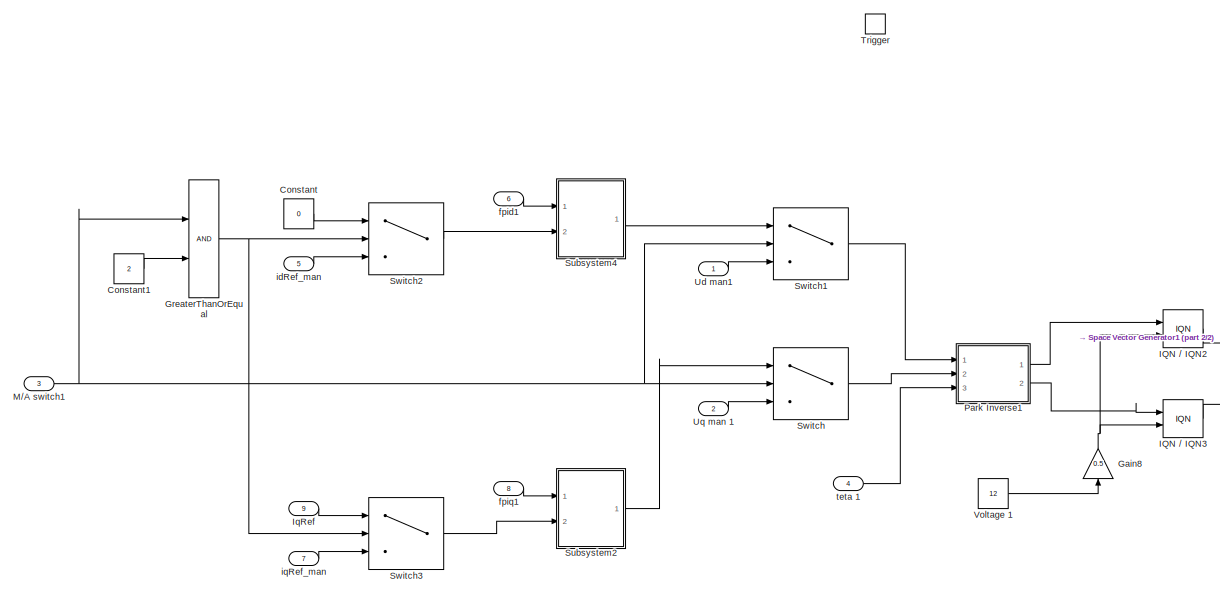
[diagram: Subsystem2 - part 1/2, left side, full height]
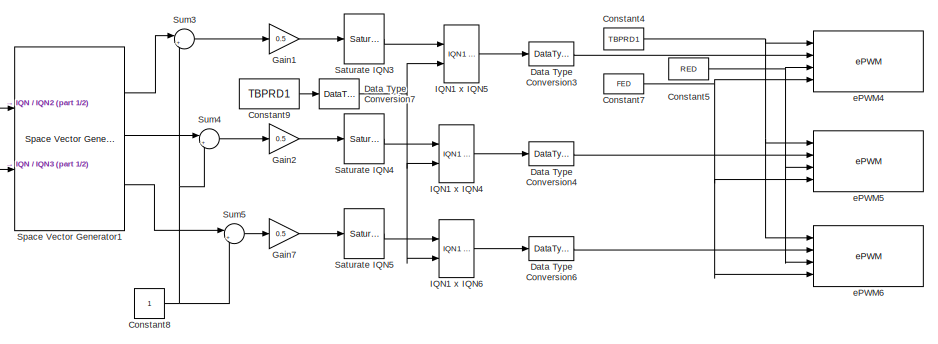
[diagram: Subsystem2 - part 2/2, bottom right region]
BLOCK [SubSystem] Subsystem2
  Ports = [9, 0, 0, 1]
  RequestExecContextInheritance = off
BLOCK [Constant] Subsystem2/Constant
  Value = 0
BLOCK [Constant] Subsystem2/Constant1
  Value = 2
BLOCK [Constant] Subsystem2/Constant4
  Value = TBPRD1
BLOCK [Constant] Subsystem2/Constant5
  Value = RED
BLOCK [Constant] Subsystem2/Constant7
  Value = FED
BLOCK [Constant] Subsystem2/Constant8
  OutDataTypeStr = fixdt(1,32,24)
BLOCK [Constant] Subsystem2/Constant9
  Value = TBPRD1
BLOCK [DataTypeConversion] Subsystem2/Data Type Conversion3
  OutDataTypeStr = uint16
  RndMeth = Floor
  SaturateOnIntegerOverflow = off
BLOCK [DataTypeConversion] Subsystem2/Data Type Conversion4
  OutDataTypeStr = uint16
  RndMeth = Floor
  SaturateOnIntegerOverflow = off
BLOCK [DataTypeConversion] Subsystem2/Data Type Conversion6
  OutDataTypeStr = uint16
  RndMeth = Floor
  SaturateOnIntegerOverflow = off
BLOCK [DataTypeConversion] Subsystem2/Data Type Conversion7
  OutDataTypeStr = fixdt(1,32,18)
  RndMeth = Floor
  SaturateOnIntegerOverflow = off
BLOCK [Gain] Subsystem2/Gain1
  Gain = 0.5
  ParamDataTypeStr = Inherit: Inherit via internal rule
  SaturateOnIntegerOverflow = off
BLOCK [Gain] Subsystem2/Gain2
  Gain = 0.5
  ParamDataTypeStr = Inherit: Inherit via internal rule
  SaturateOnIntegerOverflow = off
BLOCK [Gain] Subsystem2/Gain7
  Gain = 0.5
  ParamDataTypeStr = Inherit: Inherit via internal rule
  SaturateOnIntegerOverflow = off
BLOCK [Gain] Subsystem2/Gain8
  Gain = 0.5
  ParamDataTypeStr = Inherit: Inherit via internal rule
  SaturateOnIntegerOverflow = off
BLOCK [RelationalOperator] Subsystem2/GreaterThanOrEqual
  InputSameDT = off
  OutDataTypeStr = boolean
  Ports = [2, 1]
  RndMeth = Simplest
BLOCK [Reference] Subsystem2/IQN // IQN2  REF=tiiqmathlib/IQN // IQN
  Ports = [2, 1]
  SourceBlock = tiiqmathlib/IQN // IQN
  SourceProductBaseCode = TIC2000
  SourceProductName = Embedded Coder Support Package for Texas Instruments C2000 Processors
  SourceType = Division IQN
BLOCK [Reference] Subsystem2/IQN // IQN3  REF=tiiqmathlib/IQN // IQN
  Ports = [2, 1]
  SourceBlock = tiiqmathlib/IQN // IQN
  SourceProductBaseCode = TIC2000
  SourceProductName = Embedded Coder Support Package for Texas Instruments C2000 Processors
  SourceType = Division IQN
BLOCK [Reference] Subsystem2/IQN1 x IQN4  REF=tiiqmathlib/IQN1 x IQN2
  Ports = [2, 1]
  SourceBlock = tiiqmathlib/IQN1 x IQN2
  SourceProductBaseCode = TIC2000
  SourceProductName = Embedded Coder Support Package for Texas Instruments C2000 Processors
  SourceType = IQN1 x IQN2
BLOCK [Reference] Subsystem2/IQN1 x IQN5  REF=tiiqmathlib/IQN1 x IQN2
  Ports = [2, 1]
  SourceBlock = tiiqmathlib/IQN1 x IQN2
  SourceProductBaseCode = TIC2000
  SourceProductName = Embedded Coder Support Package for Texas Instruments C2000 Processors
  SourceType = IQN1 x IQN2
BLOCK [Reference] Subsystem2/IQN1 x IQN6  REF=tiiqmathlib/IQN1 x IQN2
  Ports = [2, 1]
  SourceBlock = tiiqmathlib/IQN1 x IQN2
  SourceProductBaseCode = TIC2000
  SourceProductName = Embedded Coder Support Package for Texas Instruments C2000 Processors
  SourceType = IQN1 x IQN2
BLOCK [Inport] Subsystem2/IqRef
  IconDisplay = Port number
  Port = 9
BLOCK [Inport] Subsystem2/M//A switch1
  IconDisplay = Port number
  Port = 3
BLOCK [SubSystem] Subsystem2/Park Inverse1
  Ports = [3, 2]
  RequestExecContextInheritance = off
BLOCK [DataTypeConversion] Subsystem2/Park Inverse1/Data Type Conversion
  OutDataTypeStr = fixdt(1,32,20)
  RndMeth = Floor
  SaturateOnIntegerOverflow = off
BLOCK [DataTypeConversion] Subsystem2/Park Inverse1/Data Type Conversion1
  OutDataTypeStr = fixdt(1,32,20)
  RndMeth = Floor
  SaturateOnIntegerOverflow = off
BLOCK [Reference] Subsystem2/Park Inverse1/IQN1 x IQN1  REF=tiiqmathlib/IQN1 x IQN2
  Ports = [2, 1]
  SourceBlock = tiiqmathlib/IQN1 x IQN2
  SourceProductBaseCode = TIC2000
  SourceProductName = Embedded Coder Support Package for Texas Instruments C2000 Processors
  SourceType = IQN1 x IQN2
BLOCK [Reference] Subsystem2/Park Inverse1/IQN1 x IQN2  REF=tiiqmathlib/IQN1 x IQN2
  Ports = [2, 1]
  SourceBlock = tiiqmathlib/IQN1 x IQN2
  SourceProductBaseCode = TIC2000
  SourceProductName = Embedded Coder Support Package for Texas Instruments C2000 Processors
  SourceType = IQN1 x IQN2
BLOCK [Reference] Subsystem2/Park Inverse1/IQN1 x IQN3  REF=tiiqmathlib/IQN1 x IQN2
  Ports = [2, 1]
  SourceBlock = tiiqmathlib/IQN1 x IQN2
  SourceProductBaseCode = TIC2000
  SourceProductName = Embedded Coder Support Package for Texas Instruments C2000 Processors
  SourceType = IQN1 x IQN2
BLOCK [Reference] Subsystem2/Park Inverse1/IQN1 x IQN4  REF=tiiqmathlib/IQN1 x IQN2
  Ports = [2, 1]
  SourceBlock = tiiqmathlib/IQN1 x IQN2
  SourceProductBaseCode = TIC2000
  SourceProductName = Embedded Coder Support Package for Texas Instruments C2000 Processors
  SourceType = IQN1 x IQN2
BLOCK [Sum] Subsystem2/Park Inverse1/Sum1
  AccumDataTypeStr = Inherit: Same as first input
  InputSameDT = off
  Inputs = |++
  Ports = [2, 1]
  SaturateOnIntegerOverflow = off
BLOCK [Sum] Subsystem2/Park Inverse1/Sum2
  AccumDataTypeStr = Inherit: Same as first input
  InputSameDT = off
  Inputs = |+-
  Ports = [2, 1]
  SaturateOnIntegerOverflow = off
BLOCK [Outport] Subsystem2/Park Inverse1/alpha
  IconDisplay = Port number
BLOCK [Outport] Subsystem2/Park Inverse1/beta
  IconDisplay = Port number
  Port = 2
BLOCK [Reference] Subsystem2/Park Inverse1/cos IQN  REF=tiiqmathlib/Trig Fcn IQN
  Ports = [1, 1]
  SourceBlock = tiiqmathlib/Trig Fcn IQN
  SourceProductBaseCode = TIC2000
  SourceProductName = Embedded Coder Support Package for Texas Instruments C2000 Processors
  SourceType = Trig Fcn IQN
BLOCK [Inport] Subsystem2/Park Inverse1/d
  IconDisplay = Port number
BLOCK [Inport] Subsystem2/Park Inverse1/q
  IconDisplay = Port number
  Port = 2
BLOCK [Reference] Subsystem2/Park Inverse1/sin IQN  REF=tiiqmathlib/Trig Fcn IQN
  Ports = [1, 1]
  SourceBlock = tiiqmathlib/Trig Fcn IQN
  SourceProductBaseCode = TIC2000
  SourceProductName = Embedded Coder Support Package for Texas Instruments C2000 Processors
  SourceType = Trig Fcn IQN
BLOCK [Inport] Subsystem2/Park Inverse1/teta
  IconDisplay = Port number
  Port = 3
BLOCK [Reference] Subsystem2/Saturate IQN3  REF=tiiqmathlib/Saturate IQN
  Ports = [1, 1]
  SourceBlock = tiiqmathlib/Saturate IQN
  SourceProductBaseCode = TIC2000
  SourceProductName = Embedded Coder Support Package for Texas Instruments C2000 Processors
  SourceType = Saturate IQN
BLOCK [Reference] Subsystem2/Saturate IQN4  REF=tiiqmathlib/Saturate IQN
  Ports = [1, 1]
  SourceBlock = tiiqmathlib/Saturate IQN
  SourceProductBaseCode = TIC2000
  SourceProductName = Embedded Coder Support Package for Texas Instruments C2000 Processors
  SourceType = Saturate IQN
BLOCK [Reference] Subsystem2/Saturate IQN5  REF=tiiqmathlib/Saturate IQN
  Ports = [1, 1]
  SourceBlock = tiiqmathlib/Saturate IQN
  SourceProductBaseCode = TIC2000
  SourceProductName = Embedded Coder Support Package for Texas Instruments C2000 Processors
  SourceType = Saturate IQN
BLOCK [Reference] Subsystem2/Space Vector Generator1  REF=c28xdmclib/Space Vector
Generator
  Ports = [2, 3]
  SourceBlock = c28xdmclib/Space Vector\nGenerator
  SourceProductBaseCode = TIC2000
  SourceProductName = Embedded Coder Support Package for Texas Instruments C2000 Processors
  SourceType = Space Vector Generator
BLOCK [SubSystem] Subsystem2/Subsystem2
  Ports = [2, 1]
  RequestExecContextInheritance = off
BLOCK [Constant] Subsystem2/Subsystem2/Constant
  Value = K(1)
BLOCK [Constant] Subsystem2/Subsystem2/Constant1
  Value = K(2)
BLOCK [Constant] Subsystem2/Subsystem2/Constant2
  Value = Ts
BLOCK [Gain] Subsystem2/Subsystem2/Gain
  Gain = Ts/(Ts+Tf)
  OutDataTypeStr = Inherit: Inherit via internal rule
  ParamDataTypeStr = Inherit: Inherit via internal rule
  SaturateOnIntegerOverflow = off
BLOCK [Gain] Subsystem2/Subsystem2/Gain1
  Gain = Tf/(Ts+Tf)
  OutDataTypeStr = Inherit: Inherit via internal rule
  ParamDataTypeStr = Inherit: Inherit via internal rule
  SaturateOnIntegerOverflow = off
BLOCK [Inport] Subsystem2/Subsystem2/IqRef
  IconDisplay = Port number
  Port = 2
BLOCK [Product] Subsystem2/Subsystem2/Product1
  InputSameDT = off
  OutDataTypeStr = Inherit: Inherit via internal rule
  Ports = [2, 1]
  RndMeth = Floor
  SaturateOnIntegerOverflow = off
BLOCK [Product] Subsystem2/Subsystem2/Product2
  InputSameDT = off
  OutDataTypeStr = Inherit: Inherit via internal rule
  Ports = [2, 1]
  RndMeth = Floor
  SaturateOnIntegerOverflow = off
BLOCK [Product] Subsystem2/Subsystem2/Product3
  InputSameDT = off
  OutDataTypeStr = Inherit: Inherit via internal rule
  Ports = [2, 1]
  RndMeth = Floor
  SaturateOnIntegerOverflow = off
BLOCK [Sum] Subsystem2/Subsystem2/Sum
  IconShape = round
  InputSameDT = off
  Inputs = |++
  OutDataTypeStr = Inherit: Inherit via internal rule
  Ports = [2, 1]
  SaturateOnIntegerOverflow = off
BLOCK [Sum] Subsystem2/Subsystem2/Sum1
  IconShape = round
  InputSameDT = off
  Inputs = |+-
  OutDataTypeStr = Inherit: Inherit via internal rule
  Ports = [2, 1]
  SaturateOnIntegerOverflow = off
BLOCK [Sum] Subsystem2/Subsystem2/Sum2
  IconShape = round
  InputSameDT = off
  Inputs = |+-
  OutDataTypeStr = Inherit: Inherit via internal rule
  Ports = [2, 1]
  SaturateOnIntegerOverflow = off
BLOCK [Sum] Subsystem2/Subsystem2/Sum5
  InputSameDT = off
  Inputs = |-++
  OutDataTypeStr = Inherit: Inherit via internal rule
  Ports = [3, 1]
  SaturateOnIntegerOverflow = off
BLOCK [UnitDelay] Subsystem2/Subsystem2/Unit Delay1
  InputProcessing = Elements as channels (sample based)
  SampleTime = -1
BLOCK [UnitDelay] Subsystem2/Subsystem2/Unit Delay2
  InputProcessing = Elements as channels (sample based)
  SampleTime = -1
BLOCK [UnitDelay] Subsystem2/Subsystem2/Unit Delay3
  InputProcessing = Elements as channels (sample based)
  SampleTime = -1
BLOCK [Outport] Subsystem2/Subsystem2/Uq LQR1
  IconDisplay = Port number
BLOCK [Inport] Subsystem2/Subsystem2/fpIq
  IconDisplay = Port number
BLOCK [SubSystem] Subsystem2/Subsystem4
  Ports = [2, 1]
  RequestExecContextInheritance = off
BLOCK [Constant] Subsystem2/Subsystem4/Constant
  Value = K(1)
BLOCK [Constant] Subsystem2/Subsystem4/Constant1
  Value = K(2)
BLOCK [Constant] Subsystem2/Subsystem4/Constant2
  Value = Ts
BLOCK [Gain] Subsystem2/Subsystem4/Gain
  Gain = Ts/(Ts+Tf)
  OutDataTypeStr = Inherit: Inherit via internal rule
  ParamDataTypeStr = Inherit: Inherit via internal rule
  SaturateOnIntegerOverflow = off
BLOCK [Gain] Subsystem2/Subsystem4/Gain1
  Gain = Tf/(Ts+Tf)
  OutDataTypeStr = Inherit: Inherit via internal rule
  ParamDataTypeStr = Inherit: Inherit via internal rule
  SaturateOnIntegerOverflow = off
BLOCK [Inport] Subsystem2/Subsystem4/IdRef
  IconDisplay = Port number
  Port = 2
BLOCK [Product] Subsystem2/Subsystem4/Product1
  InputSameDT = off
  OutDataTypeStr = Inherit: Inherit via internal rule
  Ports = [2, 1]
  RndMeth = Floor
  SaturateOnIntegerOverflow = off
BLOCK [Product] Subsystem2/Subsystem4/Product2
  InputSameDT = off
  OutDataTypeStr = Inherit: Inherit via internal rule
  Ports = [2, 1]
  RndMeth = Floor
  SaturateOnIntegerOverflow = off
BLOCK [Product] Subsystem2/Subsystem4/Product3
  InputSameDT = off
  OutDataTypeStr = Inherit: Inherit via internal rule
  Ports = [2, 1]
  RndMeth = Floor
  SaturateOnIntegerOverflow = off
BLOCK [Sum] Subsystem2/Subsystem4/Sum
  IconShape = round
  InputSameDT = off
  Inputs = |++
  OutDataTypeStr = Inherit: Inherit via internal rule
  Ports = [2, 1]
  SaturateOnIntegerOverflow = off
BLOCK [Sum] Subsystem2/Subsystem4/Sum1
  IconShape = round
  InputSameDT = off
  Inputs = |+-
  OutDataTypeStr = Inherit: Inherit via internal rule
  Ports = [2, 1]
  SaturateOnIntegerOverflow = off
BLOCK [Sum] Subsystem2/Subsystem4/Sum2
  IconShape = round
  InputSameDT = off
  Inputs = |+-
  OutDataTypeStr = Inherit: Inherit via internal rule
  Ports = [2, 1]
  SaturateOnIntegerOverflow = off
BLOCK [Sum] Subsystem2/Subsystem4/Sum5
  InputSameDT = off
  Inputs = |-++
  OutDataTypeStr = Inherit: Inherit via internal rule
  Ports = [3, 1]
  SaturateOnIntegerOverflow = off
BLOCK [Outport] Subsystem2/Subsystem4/Ud LQR1
  IconDisplay = Port number
BLOCK [UnitDelay] Subsystem2/Subsystem4/Unit Delay1
  InputProcessing = Elements as channels (sample based)
  SampleTime = -1
BLOCK [UnitDelay] Subsystem2/Subsystem4/Unit Delay2
  InputProcessing = Elements as channels (sample based)
  SampleTime = -1
BLOCK [UnitDelay] Subsystem2/Subsystem4/Unit Delay3
  InputProcessing = Elements as channels (sample based)
  SampleTime = -1
BLOCK [Inport] Subsystem2/Subsystem4/fpId
  IconDisplay = Port number
BLOCK [Sum] Subsystem2/Sum3
  IconShape = round
  InputSameDT = off
  Inputs = |++
  OutDataTypeStr = Inherit: Inherit via internal rule
  Ports = [2, 1]
  SaturateOnIntegerOverflow = off
BLOCK [Sum] Subsystem2/Sum4
  IconShape = round
  InputSameDT = off
  Inputs = |++
  OutDataTypeStr = Inherit: Inherit via internal rule
  Ports = [2, 1]
  SaturateOnIntegerOverflow = off
BLOCK [Sum] Subsystem2/Sum5
  IconShape = round
  InputSameDT = off
  Inputs = |++
  OutDataTypeStr = Inherit: Inherit via internal rule
  Ports = [2, 1]
  SaturateOnIntegerOverflow = off
BLOCK [Switch] Subsystem2/Switch
  Criteria = u2 > Threshold
  InputSameDT = off
  SaturateOnIntegerOverflow = off
BLOCK [Switch] Subsystem2/Switch1
  Criteria = u2 > Threshold
  InputSameDT = off
  SaturateOnIntegerOverflow = off
BLOCK [Switch] Subsystem2/Switch2
  Criteria = u2 > Threshold
  InputSameDT = off
  SaturateOnIntegerOverflow = off
BLOCK [Switch] Subsystem2/Switch3
  Criteria = u2 > Threshold
  InputSameDT = off
  SaturateOnIntegerOverflow = off
BLOCK [TriggerPort] Subsystem2/Trigger
  PortDimensions = 1
  Ports = []
  StatesWhenEnabling = held
  TriggerType = function-call
  VariantControl = Variant
BLOCK [Inport] Subsystem2/Ud man1
  IconDisplay = Port number
BLOCK [Inport] Subsystem2/Uq man 1
  IconDisplay = Port number
  Port = 2
BLOCK [Constant] Subsystem2/Voltage 1
  OutDataTypeStr = fixdt(1,32,20)
  Value = 12
BLOCK [Reference] Subsystem2/ePWM4  REF=c2802xlib/ePWM
  Ports = [4]
  SourceBlock = c2802xlib/ePWM
  SourceProductBaseCode = TIC2000
  SourceProductName = Embedded Coder Support Package for Texas Instruments C2000 Processors
  SourceType = C2802x/03x/05x/06x/M3x/37x/07x/004x ePWM
  UserDataPersistent = on
BLOCK [Reference] Subsystem2/ePWM5  REF=c2802xlib/ePWM
  Ports = [4]
  SourceBlock = c2802xlib/ePWM
  SourceProductBaseCode = TIC2000
  SourceProductName = Embedded Coder Support Package for Texas Instruments C2000 Processors
  SourceType = C2802x/03x/05x/06x/M3x/37x/07x/004x ePWM
  UserDataPersistent = on
BLOCK [Reference] Subsystem2/ePWM6  REF=c2802xlib/ePWM
  Ports = [4]
  SourceBlock = c2802xlib/ePWM
  SourceProductBaseCode = TIC2000
  SourceProductName = Embedded Coder Support Package for Texas Instruments C2000 Processors
  SourceType = C2802x/03x/05x/06x/M3x/37x/07x/004x ePWM
  UserDataPersistent = on
BLOCK [Inport] Subsystem2/fpid1
  IconDisplay = Port number
  Port = 6
BLOCK [Inport] Subsystem2/fpiq1
  IconDisplay = Port number
  Port = 8
BLOCK [Inport] Subsystem2/idRef_man
  IconDisplay = Port number
  Port = 5
BLOCK [Inport] Subsystem2/iqRef_man
  IconDisplay = Port number
  Port = 7
BLOCK [Inport] Subsystem2/teta 1
  IconDisplay = Port number
  Port = 4
BLOCK [SubSystem] Subsystem3
  Ports = [4, 1, 0, 1]
  RequestExecContextInheritance = off
BLOCK [Outport] Subsystem3/IqRef
  IconDisplay = Port number
BLOCK [Inport] Subsystem3/Ki
  IconDisplay = Port number
  Port = 3
BLOCK [Inport] Subsystem3/Kp
  IconDisplay = Port number
  Port = 4
BLOCK [SubSystem] Subsystem3/Subsystem5
  Ports = [1, 1]
  RequestExecContextInheritance = off
BLOCK [Constant] Subsystem3/Subsystem5/Constant
  Value = const_cuplu
BLOCK [Outport] Subsystem3/Subsystem5/IqRef
  IconDisplay = Port number
BLOCK [Product] Subsystem3/Subsystem5/Product
  InputSameDT = off
  Inputs = */
  OutDataTypeStr = Inherit: Inherit via internal rule
  Ports = [2, 1]
  RndMeth = Floor
  SaturateOnIntegerOverflow = off
BLOCK [Saturate] Subsystem3/Subsystem5/Saturation
  InputPortMap = u0
  LowerLimit = -0.8
  Ports = [1, 1]
  UpperLimit = 0.8
BLOCK [Inport] Subsystem3/Subsystem5/torque_Ref 
  IconDisplay = Port number
BLOCK [TriggerPort] Subsystem3/Trigger
  PortDimensions = 1
  Ports = []
  StatesWhenEnabling = held
  TriggerType = function-call
  VariantControl = Variant
BLOCK [Inport] Subsystem3/fpiq
  IconDisplay = Port number
BLOCK [Inport] Subsystem3/iqRef
  IconDisplay = Port number
  Port = 2
BLOCK [SubSystem] Subsystem3/regulator curent iq
  Ports = [4, 1]
  RequestExecContextInheritance = off
BLOCK [Constant] Subsystem3/regulator curent iq/Constant
  OutDataTypeStr = single
  SampleTime = -1
  Value = T_pos
BLOCK [Gain] Subsystem3/regulator curent iq/Gain
  Commented = on
  Gain = T_pos/(T_pos+Tf)
  OutDataTypeStr = Inherit: Inherit via internal rule
  ParamDataTypeStr = Inherit: Inherit via internal rule
  SaturateOnIntegerOverflow = off
BLOCK [Gain] Subsystem3/regulator curent iq/Gain1
  Commented = on
  Gain = Tf/(T_pos+Tf)
  OutDataTypeStr = Inherit: Inherit via internal rule
  ParamDataTypeStr = Inherit: Inherit via internal rule
  SaturateOnIntegerOverflow = off
BLOCK [Inport] Subsystem3/regulator curent iq/KiPI
  IconDisplay = Port number
BLOCK [Inport] Subsystem3/regulator curent iq/KpPI
  IconDisplay = Port number
  Port = 2
BLOCK [Product] Subsystem3/regulator curent iq/Product
  InputSameDT = off
  OutDataTypeStr = Inherit: Inherit via internal rule
  Ports = [2, 1]
  RndMeth = Floor
  SaturateOnIntegerOverflow = off
BLOCK [Product] Subsystem3/regulator curent iq/Product1
  InputSameDT = off
  OutDataTypeStr = Inherit: Inherit via internal rule
  Ports = [2, 1]
  RndMeth = Floor
  SaturateOnIntegerOverflow = off
BLOCK [Product] Subsystem3/regulator curent iq/Product2
  InputSameDT = off
  OutDataTypeStr = Inherit: Inherit via internal rule
  Ports = [2, 1]
  RndMeth = Floor
  SaturateOnIntegerOverflow = off
BLOCK [Product] Subsystem3/regulator curent iq/Product3
  InputSameDT = off
  OutDataTypeStr = Inherit: Inherit via internal rule
  Ports = [2, 1]
  RndMeth = Floor
  SaturateOnIntegerOverflow = off
BLOCK [Sum] Subsystem3/regulator curent iq/Sum
  Commented = on
  IconShape = round
  InputSameDT = off
  Inputs = |++
  OutDataTypeStr = Inherit: Inherit via internal rule
  Ports = [2, 1]
  SaturateOnIntegerOverflow = off
BLOCK [Sum] Subsystem3/regulator curent iq/Sum1
  InputSameDT = off
  Inputs = |+-
  OutDataTypeStr = Inherit: Inherit via internal rule
  Ports = [2, 1]
  SaturateOnIntegerOverflow = off
BLOCK [Sum] Subsystem3/regulator curent iq/Sum2
  InputSameDT = off
  Inputs = +-++
  OutDataTypeStr = Inherit: Inherit via internal rule
  Ports = [4, 1]
  SaturateOnIntegerOverflow = off
BLOCK [UnitDelay] Subsystem3/regulator curent iq/Unit Delay1
  Commented = on
  InputProcessing = Elements as channels (sample based)
  SampleTime = -1
BLOCK [UnitDelay] Subsystem3/regulator curent iq/Unit Delay2
  InputProcessing = Elements as channels (sample based)
  SampleTime = -1
BLOCK [UnitDelay] Subsystem3/regulator curent iq/Unit Delay3
  InputProcessing = Elements as channels (sample based)
  SampleTime = -1
BLOCK [Outport] Subsystem3/regulator curent iq/Uq PI1
  IconDisplay = Port number
BLOCK [Inport] Subsystem3/regulator curent iq/fpiq
  IconDisplay = Port number
  Port = 4
BLOCK [Inport] Subsystem3/regulator curent iq/iqRef
  IconDisplay = Port number
  Port = 3
BLOCK [Outport] Ud_man
  IconDisplay = Port number
  VectorParamsAs1DForOutWhenUnconnected = on
BLOCK [Outport] Uq_man
  IconDisplay = Port number
  Port = 2
  VectorParamsAs1DForOutWhenUnconnected = on
BLOCK [SubSystem] calc pozitiei si a vitezei
  Ports = [3, 2, 0, 1]
  RequestExecContextInheritance = off
BLOCK [Inport] calc pozitiei si a vitezei/FrqHzElec
  IconDisplay = Port number
  Port = 2
BLOCK [Inport] calc pozitiei si a vitezei/In3
  IconDisplay = Port number
  Port = 3
BLOCK [Outport] calc pozitiei si a vitezei/RPMSpdFil
  IconDisplay = Port number
  Port = 2
  VectorParamsAs1DForOutWhenUnconnected = on
BLOCK [Terminator] calc pozitiei si a vitezei/Terminator
BLOCK [Terminator] calc pozitiei si a vitezei/Terminator1
BLOCK [Terminator] calc pozitiei si a vitezei/Terminator2
BLOCK [Terminator] calc pozitiei si a vitezei/Terminator3
BLOCK [Terminator] calc pozitiei si a vitezei/Terminator5
BLOCK [TriggerPort] calc pozitiei si a vitezei/Trigger
  PortDimensions = 1
  Ports = []
  StatesWhenEnabling = held
  TriggerType = function-call
  VariantControl = (inherit)
BLOCK [Inport] calc pozitiei si a vitezei/bToggleInterruptECAP
  IconDisplay = Port number
BLOCK [SubSystem] calc pozitiei si a vitezei/calc pozitie
  Ports = [1, 2]
  RequestExecContextInheritance = off
BLOCK [DataTypeConversion] calc pozitiei si a vitezei/calc pozitie/Data Type Conversion
  OutDataTypeStr = int8
  RndMeth = Floor
  SaturateOnIntegerOverflow = off
BLOCK [Inport] calc pozitiei si a vitezei/calc pozitie/In1
  IconDisplay = Port number
BLOCK [SubSystem] calc pozitiei si a vitezei/calc pozitie/MATLAB Function
  ErrorFcn = Stateflow.Translate.translate
  PermitHierarchicalResolution = ExplicitOnly
  Ports = [1, 1]
  RequestExecContextInheritance = off
  SFBlockType = MATLAB Function
  TreatAsAtomicUnit = on
BLOCK [Demux] calc pozitiei si a vitezei/calc pozitie/MATLAB Function/ Demux 
  DisplayOption = bar
  Outputs = 1
  Ports = [1, 1]
BLOCK [S-Function] calc pozitiei si a vitezei/calc pozitie/MATLAB Function/ SFunction 
  EnableBusSupport = on
  FunctionName = sf_sfun
  PortCounts = [1 2]
  Ports = [1, 2]
  SFcnIsStateOwnerBlock = off
  SFunctionDeploymentMode = off
  Tag = Stateflow S-Function LICENTA_2024 2
BLOCK [Terminator] calc pozitiei si a vitezei/calc pozitie/MATLAB Function/ Terminator 
BLOCK [Outport] calc pozitiei si a vitezei/calc pozitie/MATLAB Function/dir
  IconDisplay = Port number
  VectorParamsAs1DForOutWhenUnconnected = on
BLOCK [Inport] calc pozitiei si a vitezei/calc pozitie/MATLAB Function/u
  IconDisplay = Port number
BLOCK [SubSystem] calc pozitiei si a vitezei/calc pozitie/citire senzori hall & calcul teta
  Ports = [1, 2]
  RequestExecContextInheritance = off
BLOCK [Reference] calc pozitiei si a vitezei/calc pozitie/citire senzori hall & calcul teta/Digital Input  REF=c2837xDlib/Digital Input
  Ports = [0, 1]
  SourceBlock = c2837xDlib/Digital Input
  SourceProductBaseCode = TIC2000
  SourceType = F2837x GPIO Digital Input
  UserDataPersistent = on
BLOCK [Reference] calc pozitiei si a vitezei/calc pozitie/citire senzori hall & calcul teta/Digital Input1  REF=c2837xDlib/Digital Input
  Ports = [0, 1]
  SourceBlock = c2837xDlib/Digital Input
  SourceProductBaseCode = TIC2000
  SourceType = F2837x GPIO Digital Input
  UserDataPersistent = on
BLOCK [Reference] calc pozitiei si a vitezei/calc pozitie/citire senzori hall & calcul teta/Digital Input2  REF=c2837xDlib/Digital Input
  Ports = [0, 1]
  SourceBlock = c2837xDlib/Digital Input
  SourceProductBaseCode = TIC2000
  SourceType = F2837x GPIO Digital Input
  UserDataPersistent = on
BLOCK [Inport] calc pozitiei si a vitezei/calc pozitie/citire senzori hall & calcul teta/In1
  IconDisplay = Port number
BLOCK [SubSystem] calc pozitiei si a vitezei/calc pozitie/citire senzori hall & calcul teta/Optimizare
  Ports = [3, 1]
  RequestExecContextInheritance = off
BLOCK [Inport] calc pozitiei si a vitezei/calc pozitie/citire senzori hall & calcul teta/Optimizare/HallA
  IconDisplay = Port number
BLOCK [Inport] calc pozitiei si a vitezei/calc pozitie/citire senzori hall & calcul teta/Optimizare/HallB
  IconDisplay = Port number
  Port = 2
BLOCK [Inport] calc pozitiei si a vitezei/calc pozitie/citire senzori hall & calcul teta/Optimizare/HallC
  IconDisplay = Port number
  Port = 3
BLOCK [UnitDelay] calc pozitiei si a vitezei/calc pozitie/citire senzori hall & calcul teta/Optimizare/Unit Delay
  InputProcessing = Elements as channels (sample based)
  SampleTime = -1
BLOCK [UnitDelay] calc pozitiei si a vitezei/calc pozitie/citire senzori hall & calcul teta/Optimizare/Unit Delay1
  InputProcessing = Elements as channels (sample based)
  SampleTime = -1
BLOCK [UnitDelay] calc pozitiei si a vitezei/calc pozitie/citire senzori hall & calcul teta/Optimizare/Unit Delay2
  InputProcessing = Elements as channels (sample based)
  SampleTime = -1
BLOCK [Logic] calc pozitiei si a vitezei/calc pozitie/citire senzori hall & calcul teta/Optimizare/XOR
  AllPortsSameDT = off
  Inputs = 6
  Operator = XOR
  OutDataTypeStr = boolean
  Ports = [6, 1]
BLOCK [Outport] calc pozitiei si a vitezei/calc pozitie/citire senzori hall & calcul teta/Optimizare/seq. change detected 
  IconDisplay = Port number
  VectorParamsAs1DForOutWhenUnconnected = on
BLOCK [Outport] calc pozitiei si a vitezei/calc pozitie/citire senzori hall & calcul teta/seq. change detected 
  IconDisplay = Port number
  Port = 2
BLOCK [Outport] calc pozitiei si a vitezei/calc pozitie/citire senzori hall & calcul teta/teta
  IconDisplay = Port number
  VectorParamsAs1DForOutWhenUnconnected = on
BLOCK [SubSystem] calc pozitiei si a vitezei/calc pozitie/citire senzori hall & calcul teta/transf clarke
  Ports = [4, 1, 0, 1]
  RequestExecContextInheritance = off
BLOCK [Reference] calc pozitiei si a vitezei/calc pozitie/citire senzori hall & calcul teta/transf clarke/Arctangent IQN  REF=tiiqmathlib/Arctangent IQN
  Ports = [2, 1]
  SourceBlock = tiiqmathlib/Arctangent IQN
  SourceProductBaseCode = TIC2000
  SourceType = Arctangent IQN
BLOCK [Demux] calc pozitiei si a vitezei/calc pozitie/citire senzori hall & calcul teta/transf clarke/Demux
  DisplayOption = bar
  Outputs = 3
  Ports = [1, 3]
BLOCK [Reference] calc pozitiei si a vitezei/calc pozitie/citire senzori hall & calcul teta/transf clarke/Float to IQN2  REF=tiiqmathlib/Float to IQN
  Ports = [1, 1]
  SourceBlock = tiiqmathlib/Float to IQN
  SourceProductBaseCode = TIC2000
  SourceType = Float to IQN
BLOCK [Reference] calc pozitiei si a vitezei/calc pozitie/citire senzori hall & calcul teta/transf clarke/Float to IQN3  REF=tiiqmathlib/Float to IQN
  Ports = [1, 1]
  SourceBlock = tiiqmathlib/Float to IQN
  SourceProductBaseCode = TIC2000
  SourceType = Float to IQN
BLOCK [Gain] calc pozitiei si a vitezei/calc pozitie/citire senzori hall & calcul teta/transf clarke/Gain
  Gain = 2/3
  OutDataTypeStr = Inherit: Inherit via internal rule
  ParamDataTypeStr = Inherit: Inherit via internal rule
  SaturateOnIntegerOverflow = off
BLOCK [Gain] calc pozitiei si a vitezei/calc pozitie/citire senzori hall & calcul teta/transf clarke/Gain1
  Gain = -1/3
  OutDataTypeStr = Inherit: Inherit via internal rule
  ParamDataTypeStr = Inherit: Inherit via internal rule
  SaturateOnIntegerOverflow = off
BLOCK [Gain] calc pozitiei si a vitezei/calc pozitie/citire senzori hall & calcul teta/transf clarke/Gain2
  Gain = -1/3
  OutDataTypeStr = Inherit: Inherit via internal rule
  ParamDataTypeStr = Inherit: Inherit via internal rule
  SaturateOnIntegerOverflow = off
BLOCK [Gain] calc pozitiei si a vitezei/calc pozitie/citire senzori hall & calcul teta/transf clarke/Gain3
  Gain = sqrt(3)/3
  OutDataTypeStr = Inherit: Inherit via internal rule
  ParamDataTypeStr = Inherit: Inherit via internal rule
  SaturateOnIntegerOverflow = off
BLOCK [Gain] calc pozitiei si a vitezei/calc pozitie/citire senzori hall & calcul teta/transf clarke/Gain4
  Gain = -sqrt(3)/3
  OutDataTypeStr = Inherit: Inherit via internal rule
  ParamDataTypeStr = Inherit: Inherit via internal rule
  SaturateOnIntegerOverflow = off
BLOCK [Inport] calc pozitiei si a vitezei/calc pozitie/citire senzori hall & calcul teta/transf clarke/HallA
  IconDisplay = Port number
BLOCK [Inport] calc pozitiei si a vitezei/calc pozitie/citire senzori hall & calcul teta/transf clarke/HallB
  IconDisplay = Port number
  Port = 2
BLOCK [Inport] calc pozitiei si a vitezei/calc pozitie/citire senzori hall & calcul teta/transf clarke/HallC
  IconDisplay = Port number
  Port = 3
BLOCK [Mux] calc pozitiei si a vitezei/calc pozitie/citire senzori hall & calcul teta/transf clarke/Mux
  DisplayOption = bar
  Inputs = 3
  Ports = [3, 1]
BLOCK [Sum] calc pozitiei si a vitezei/calc pozitie/citire senzori hall & calcul teta/transf clarke/Sum
  InputSameDT = off
  Inputs = |+++
  OutDataTypeStr = single
  Ports = [3, 1]
  SaturateOnIntegerOverflow = off
BLOCK [Sum] calc pozitiei si a vitezei/calc pozitie/citire senzori hall & calcul teta/transf clarke/Sum1
  AccumDataTypeStr = single
  IconShape = round
  InputSameDT = off
  Inputs = |++
  OutDataTypeStr = Inherit: Inherit via internal rule
  Ports = [2, 1]
  SaturateOnIntegerOverflow = off
BLOCK [Sum] calc pozitiei si a vitezei/calc pozitie/citire senzori hall & calcul teta/transf clarke/Sum2
  IconShape = round
  InputSameDT = off
  Inputs = |++
  OutDataTypeStr = Inherit: Inherit via internal rule
  Ports = [2, 1]
  SaturateOnIntegerOverflow = off
BLOCK [TriggerPort] calc pozitiei si a vitezei/calc pozitie/citire senzori hall & calcul teta/transf clarke/Trigger
  PortDimensions = 1
  Ports = []
  StatesWhenEnabling = held
  VariantControl = (inherit)
BLOCK [Outport] calc pozitiei si a vitezei/calc pozitie/citire senzori hall & calcul teta/transf clarke/teta
  IconDisplay = Port number
  VectorParamsAs1DForOutWhenUnconnected = on
BLOCK [Inport] calc pozitiei si a vitezei/calc pozitie/citire senzori hall & calcul teta/transf clarke/teta_allighn
  IconDisplay = Port number
  Port = 4
BLOCK [SubSystem] calc pozitiei si a vitezei/calc pozitie/gradient
  Ports = [1, 1, 0, 1]
  RequestExecContextInheritance = off
BLOCK [Sum] calc pozitiei si a vitezei/calc pozitie/gradient/Sum
  IconShape = round
  InputSameDT = off
  Inputs = +-
  OutDataTypeStr = Inherit: Inherit via internal rule
  Ports = [2, 1]
  SaturateOnIntegerOverflow = off
BLOCK [TriggerPort] calc pozitiei si a vitezei/calc pozitie/gradient/Trigger
  PortDimensions = 1
  Ports = []
  StatesWhenEnabling = held
  VariantControl = Variant
BLOCK [UnitDelay] calc pozitiei si a vitezei/calc pozitie/gradient/Unit Delay
  InputProcessing = Elements as channels (sample based)
  SampleTime = -1
BLOCK [Outport] calc pozitiei si a vitezei/calc pozitie/gradient/gradient
  IconDisplay = Port number
  VectorParamsAs1DForOutWhenUnconnected = on
BLOCK [Inport] calc pozitiei si a vitezei/calc pozitie/gradient/teta
  IconDisplay = Port number
BLOCK [Outport] calc pozitiei si a vitezei/calc pozitie/int8dir
  IconDisplay = Port number
  Port = 2
  VectorParamsAs1DForOutWhenUnconnected = on
BLOCK [Outport] calc pozitiei si a vitezei/calc pozitie/teta
  IconDisplay = Port number
  VectorParamsAs1DForOutWhenUnconnected = on
BLOCK [SubSystem] calc pozitiei si a vitezei/calc viteza
  Ports = [3, 6]
  RequestExecContextInheritance = off
BLOCK [Constant] calc pozitiei si a vitezei/calc viteza/Constant
BLOCK [Constant] calc pozitiei si a vitezei/calc viteza/Constant1
  Value = 0
BLOCK [Constant] calc pozitiei si a vitezei/calc viteza/Constant2
  Value = 0
BLOCK [Constant] calc pozitiei si a vitezei/calc viteza/Constant3
  Value = MaxIter_1_ms_eCAP_wait
BLOCK [DiscreteFilter] calc pozitiei si a vitezei/calc viteza/Discrete Filter
  Denominator = [(T_pos+Tf_spd) -Tf_spd]
  InputPortMap = u0
  Numerator = [T_pos]
  Ports = [1, 1]
BLOCK [Inport] calc pozitiei si a vitezei/calc viteza/FrqHzElec
  IconDisplay = Port number
  Port = 2
BLOCK [Gain] calc pozitiei si a vitezei/calc viteza/Gain
  OutDataTypeStr = Inherit: Inherit via internal rule
  ParamDataTypeStr = Inherit: Inherit via internal rule
  SaturateOnIntegerOverflow = off
BLOCK [Gain] calc pozitiei si a vitezei/calc viteza/Gain1
  Gain = 2*pi
  OutDataTypeStr = Inherit: Inherit via internal rule
  ParamDataTypeStr = Inherit: Inherit via internal rule
  SaturateOnIntegerOverflow = off
BLOCK [Gain] calc pozitiei si a vitezei/calc viteza/Gain2
  Gain = -2*pi
  OutDataTypeStr = Inherit: Inherit via internal rule
  ParamDataTypeStr = Inherit: Inherit via internal rule
  SaturateOnIntegerOverflow = off
BLOCK [Gain] calc pozitiei si a vitezei/calc viteza/Gain3
  Gain = 1/pp
  OutDataTypeStr = Inherit: Inherit via internal rule
  ParamDataTypeStr = Inherit: Inherit via internal rule
  SaturateOnIntegerOverflow = off
BLOCK [Gain] calc pozitiei si a vitezei/calc viteza/Gain4
  Gain = 30/pi
  OutDataTypeStr = Inherit: Inherit via internal rule
  ParamDataTypeStr = Inherit: Inherit via internal rule
  SaturateOnIntegerOverflow = off
BLOCK [RelationalOperator] calc pozitiei si a vitezei/calc viteza/GreaterThanOrEqual
  InputSameDT = off
  OutDataTypeStr = boolean
  Ports = [2, 1]
  RndMeth = Simplest
BLOCK [Outport] calc pozitiei si a vitezei/calc viteza/HzHallFreqFil
  IconDisplay = Port number
  Port = 2
  VectorParamsAs1DForOutWhenUnconnected = on
BLOCK [Product] calc pozitiei si a vitezei/calc viteza/Product
  InputSameDT = off
  OutDataTypeStr = Inherit: Inherit via internal rule
  Ports = [2, 1]
  RndMeth = Floor
  SaturateOnIntegerOverflow = off
BLOCK [Product] calc pozitiei si a vitezei/calc viteza/Product1
  InputSameDT = off
  OutDataTypeStr = Inherit: Inherit via internal rule
  Ports = [2, 1]
  RndMeth = Floor
  SaturateOnIntegerOverflow = off
BLOCK [Outport] calc pozitiei si a vitezei/calc viteza/RPMSpdFil
  IconDisplay = Port number
  VectorParamsAs1DForOutWhenUnconnected = on
BLOCK [Outport] calc pozitiei si a vitezei/calc viteza/RadpsHallFreq
  IconDisplay = Port number
  Port = 4
  VectorParamsAs1DForOutWhenUnconnected = on
BLOCK [Outport] calc pozitiei si a vitezei/calc viteza/RadpsHallFreqFil
  IconDisplay = Port number
  Port = 5
  VectorParamsAs1DForOutWhenUnconnected = on
BLOCK [Outport] calc pozitiei si a vitezei/calc viteza/RadpsMechFreqFil
  IconDisplay = Port number
  Port = 3
  VectorParamsAs1DForOutWhenUnconnected = on
BLOCK [Saturate] calc pozitiei si a vitezei/calc viteza/Saturation
  InputPortMap = u0
  LowerLimit = 0
  Ports = [1, 1]
  UpperLimit = MaxIter_1_ms_eCAP_wait
BLOCK [Sum] calc pozitiei si a vitezei/calc viteza/Sum
  IconShape = round
  InputSameDT = off
  Inputs = |++
  OutDataTypeStr = Inherit: Inherit via internal rule
  Ports = [2, 1]
  SaturateOnIntegerOverflow = off
BLOCK [Switch] calc pozitiei si a vitezei/calc viteza/Switch
  Criteria = u2 > Threshold
  InputSameDT = off
  SaturateOnIntegerOverflow = off
BLOCK [Switch] calc pozitiei si a vitezei/calc viteza/Switch1
  Criteria = u2 > Threshold
  InputSameDT = off
  SaturateOnIntegerOverflow = off
BLOCK [UnitDelay] calc pozitiei si a vitezei/calc viteza/Unit Delay
  InputProcessing = Elements as channels (sample based)
  SampleTime = -1
BLOCK [UnitDelay] calc pozitiei si a vitezei/calc viteza/Unit Delay1
  InputProcessing = Elements as channels (sample based)
  SampleTime = -1
BLOCK [Logic] calc pozitiei si a vitezei/calc viteza/XOR
  AllPortsSameDT = off
  IconShape = distinctive
  Operator = XOR
  OutDataTypeStr = boolean
  Ports = [2, 1]
BLOCK [Outport] calc pozitiei si a vitezei/calc viteza/bSPDNOTDetected
  IconDisplay = Port number
  Port = 6
  VectorParamsAs1DForOutWhenUnconnected = on
BLOCK [Inport] calc pozitiei si a vitezei/calc viteza/bToggleInterruptECAP
  IconDisplay = Port number
  Port = 3
BLOCK [Inport] calc pozitiei si a vitezei/calc viteza/int8Dir
  IconDisplay = Port number
BLOCK [Outport] calc pozitiei si a vitezei/teta
  IconDisplay = Port number
  VectorParamsAs1DForOutWhenUnconnected = on
BLOCK [SubSystem] eCAP
  Ports = [0, 2, 0, 1]
  RequestExecContextInheritance = off
BLOCK [DataTypeConversion] eCAP/Data Type Conversion
  OutDataTypeStr = uint32
  RndMeth = Floor
  SaturateOnIntegerOverflow = off
BLOCK [DataTypeConversion] eCAP/Data Type Conversion1
  OutDataTypeStr = uint32
  RndMeth = Floor
  SaturateOnIntegerOverflow = off
BLOCK [Outport] eCAP/FrqHzElec
  IconDisplay = Port number
BLOCK [Gain] eCAP/Gain
  Gain = TTBCLK
  OutDataTypeStr = Inherit: Inherit via internal rule
  ParamDataTypeStr = Inherit: Inherit via internal rule
  SaturateOnIntegerOverflow = off
BLOCK [If] eCAP/If
  ElseIfExpressions = u1 >= Max_eCAP
  IfExpression = u1 <= Min_eCAP
  Ports = [1, 3]
BLOCK [SubSystem] eCAP/If Action Subsystem
  Ports = [1, 1, 0, 0, 0, 0, 0, 1]
  RequestExecContextInheritance = off
  TreatAsAtomicUnit = on
BLOCK [ActionPort] eCAP/If Action Subsystem/Action Port
  ActionType = then
BLOCK [Outport] eCAP/If Action Subsystem/HzHallFreq
  IconDisplay = Port number
  VectorParamsAs1DForOutWhenUnconnected = on
BLOCK [Inport] eCAP/If Action Subsystem/HzHallFreqPrev
  IconDisplay = Port number
BLOCK [SubSystem] eCAP/If Action Subsystem1
  Ports = [0, 1, 0, 0, 0, 0, 0, 1]
  RequestExecContextInheritance = off
  TreatAsAtomicUnit = on
BLOCK [ActionPort] eCAP/If Action Subsystem1/Action Port
  ActionType = elseif
BLOCK [Constant] eCAP/If Action Subsystem1/Constant
  Value = 0
BLOCK [Outport] eCAP/If Action Subsystem1/HzHallFreq
  IconDisplay = Port number
  VectorParamsAs1DForOutWhenUnconnected = on
BLOCK [SubSystem] eCAP/If Action Subsystem2
  Ports = [1, 1, 0, 0, 0, 0, 0, 1]
  RequestExecContextInheritance = off
  TreatAsAtomicUnit = on
BLOCK [ActionPort] eCAP/If Action Subsystem2/Action Port
  ActionType = else
BLOCK [Constant] eCAP/If Action Subsystem2/Constant
BLOCK [Inport] eCAP/If Action Subsystem2/HallPeriod
  IconDisplay = Port number
BLOCK [Outport] eCAP/If Action Subsystem2/HzHallFreq
  IconDisplay = Port number
  VectorParamsAs1DForOutWhenUnconnected = on
BLOCK [Product] eCAP/If Action Subsystem2/Multiply
  InputSameDT = off
  Inputs = */
  OutDataTypeStr = Inherit: Inherit via internal rule
  Ports = [2, 1]
  RndMeth = Floor
  SaturateOnIntegerOverflow = off
BLOCK [MinMax] eCAP/Max
  Function = max
  InputSameDT = off
  Inputs = 2
  Ports = [2, 1]
  SaturateOnIntegerOverflow = off
BLOCK [Merge] eCAP/Merge
  Inputs = 3
  Ports = [3, 1]
BLOCK [Logic] eCAP/NOT
  AllPortsSameDT = off
  IconShape = distinctive
  Operator = NOT
  OutDataTypeStr = boolean
  Ports = [1, 1]
BLOCK [TriggerPort] eCAP/Post interrupt on capture event 1()
  PortDimensions = 1
  Ports = []
  StatesWhenEnabling = held
  TriggerType = function-call
  VariantControl = (inherit)
BLOCK [UnitDelay] eCAP/Unit Delay
  InputProcessing = Elements as channels (sample based)
  SampleTime = -1
BLOCK [UnitDelay] eCAP/Unit Delay1
  InputProcessing = Elements as channels (sample based)
  SampleTime = -1
BLOCK [Outport] eCAP/bToggleInterruptECAP
  IconDisplay = Port number
  Port = 2
BLOCK [Reference] eCAP/eCAP1   REF=c280xlib/eCAP
  Ports = [0, 1]
  SourceBlock = c280xlib/eCAP
  SourceProductBaseCode = TIC2000
  SourceType = C28x eCAP
BLOCK [Reference] eCAP/eCAP2   REF=c280xlib/eCAP
  Ports = [0, 1]
  SourceBlock = c280xlib/eCAP
  SourceProductBaseCode = TIC2000
  SourceType = C28x eCAP
BLOCK [Outport] idRef_man
  IconDisplay = Port number
  Port = 3
  VectorParamsAs1DForOutWhenUnconnected = on
BLOCK [Outport] iqRef_man
  IconDisplay = Port number
  Port = 10
BLOCK [Outport] teta
  IconDisplay = Port number
  Port = 7
  VectorParamsAs1DForOutWhenUnconnected = on
LINE C28x Hardware Interrupt:1 -> Demux:1
LINE Demux:1 -> Goto:1
LINE Demux:2 -> Goto1:1
LINE Demux:3 -> Goto12:1
LINE From10:1 -> PWM:10
LINE From11:1 -> PWM:1
LINE From12:1 -> PWM:2
LINE From13:1 -> PWM:3
LINE From14:1 -> Receptie seriala :trigger
LINE From15:1 -> Subsystem2:3
LINE From16:1 -> PWM:8
LINE From17:1 -> Subsystem:trigger
LINE From18:1 -> PWM:7
LINE From19:1 -> Subsystem2:1
LINE From1:1 -> Rate Transition:1
LINE From20:1 -> Subsystem2:2
LINE From21:1 -> Subsystem2:4
LINE From22:1 -> Subsystem2:5
LINE From23:1 -> Subsystem2:7
LINE From24:1 -> Subsystem2:6
LINE From25:1 -> Subsystem2:8
LINE From26:1 -> Subsystem3:1
LINE From27:1 -> Subsystem3:2
LINE From28:1 -> Subsystem3:3
LINE From29:1 -> Subsystem3:4
LINE From2:1 -> Rate Transition1:1
LINE From3:1 -> Subsystem:1
LINE From4:1 -> Subsystem1:1
LINE From5:1 -> PWM:4
LINE From6:1 -> Subsystem1:2
LINE From7:1 -> PWM:6
LINE From8:1 -> PWM:5
LINE From9:1 -> PWM:9
LINE From:1 -> eCAP:trigger
LINE Function-Call Generator1:1 -> Subsystem1:trigger
LINE Function-Call Generator2:1 -> calc pozitiei si a vitezei:trigger
LINE Function-Call Generator3:1 -> PWM:trigger
LINE Function-Call Generator4:1 -> Subsystem2:trigger
LINE Function-Call Generator5:1 -> Subsystem3:trigger
NET PWM/Constant1:1 -> PWM/ePWM1:3, PWM/ePWM2:3, PWM/ePWM3:3
NET PWM/Constant2:1 -> PWM/ePWM1:4, PWM/ePWM2:4, PWM/ePWM3:4
NET PWM/Constant3:1 -> PWM/Sum1:2, PWM/Sum2:2, PWM/Sum:2
LINE PWM/Constant6:1 -> PWM/Data Type Conversion5:1
NET PWM/Constant:1 -> PWM/ePWM1:1, PWM/ePWM2:1, PWM/ePWM3:1
LINE PWM/Data Type Conversion1:1 -> PWM/ePWM2:2
LINE PWM/Data Type Conversion2:1 -> PWM/ePWM3:2
NET PWM/Data Type Conversion5:1 -> PWM/IQN1 x IQN1:2, PWM/IQN1 x IQN2:2, PWM/IQN1 x IQN3:2
LINE PWM/Data Type Conversion:1 -> PWM/ePWM1:2
LINE PWM/Gain3:1 -> PWM/Saturate IQN:1
LINE PWM/Gain4:1 -> PWM/Saturate IQN1:1
LINE PWM/Gain5:1 -> PWM/Saturate IQN2:1
NET PWM/Gain6:1 -> PWM/IQN // IQN1:2, PWM/IQN // IQN:2
LINE PWM/IQN // IQN1:1 -> PWM/Space Vector Generator:2
LINE PWM/IQN // IQN:1 -> PWM/Space Vector Generator:1
LINE PWM/IQN1 x IQN1:1 -> PWM/Data Type Conversion1:1
LINE PWM/IQN1 x IQN2:1 -> PWM/Data Type Conversion:1
LINE PWM/IQN1 x IQN3:1 -> PWM/Data Type Conversion2:1
NET PWM/M//A switch:1 -> PWM/Switch1:2, PWM/Switch:2
NET PWM/Park Inverse/Data Type Conversion1:1 -> PWM/Park Inverse/IQN1 x IQN1:1, PWM/Park Inverse/IQN1 x IQN3:1
NET PWM/Park Inverse/Data Type Conversion:1 -> PWM/Park Inverse/IQN1 x IQN2:1, PWM/Park Inverse/IQN1 x IQN4:1
LINE PWM/Park Inverse/IQN1 x IQN1:1 -> PWM/Park Inverse/Sum2:2
LINE PWM/Park Inverse/IQN1 x IQN2:1 -> PWM/Park Inverse/Sum2:1
LINE PWM/Park Inverse/IQN1 x IQN3:1 -> PWM/Park Inverse/Sum1:1
LINE PWM/Park Inverse/IQN1 x IQN4:1 -> PWM/Park Inverse/Sum1:2
LINE PWM/Park Inverse/Sum1:1 -> PWM/Park Inverse/beta:1
LINE PWM/Park Inverse/Sum2:1 -> PWM/Park Inverse/alpha:1
NET PWM/Park Inverse/cos IQN:1 -> PWM/Park Inverse/IQN1 x IQN2:2, PWM/Park Inverse/IQN1 x IQN3:2
LINE PWM/Park Inverse/d:1 -> PWM/Park Inverse/Data Type Conversion:1
LINE PWM/Park Inverse/q:1 -> PWM/Park Inverse/Data Type Conversion1:1
NET PWM/Park Inverse/sin IQN:1 -> PWM/Park Inverse/IQN1 x IQN1:2, PWM/Park Inverse/IQN1 x IQN4:2
NET PWM/Park Inverse/teta:1 -> PWM/Park Inverse/cos IQN:1, PWM/Park Inverse/sin IQN:1
LINE PWM/Park Inverse:1 -> PWM/IQN // IQN:1
LINE PWM/Park Inverse:2 -> PWM/IQN // IQN1:1
LINE PWM/Saturate IQN1:1 -> PWM/IQN1 x IQN1:1
LINE PWM/Saturate IQN2:1 -> PWM/IQN1 x IQN3:1
LINE PWM/Saturate IQN:1 -> PWM/IQN1 x IQN2:1
LINE PWM/Space Vector Generator:1 -> PWM/Sum:1
LINE PWM/Space Vector Generator:2 -> PWM/Sum1:1
LINE PWM/Space Vector Generator:3 -> PWM/Sum2:1
LINE PWM/Subsystem2/Constant1:1 -> PWM/Subsystem2/Product3:2
LINE PWM/Subsystem2/Constant2:1 -> PWM/Subsystem2/Product3:1
LINE PWM/Subsystem2/Constant:1 -> PWM/Subsystem2/Product2:2
LINE PWM/Subsystem2/Gain1:1 -> PWM/Subsystem2/Sum:2
LINE PWM/Subsystem2/Gain:1 -> PWM/Subsystem2/Sum:1
LINE PWM/Subsystem2/IqRef:1 -> PWM/Subsystem2/Sum1:1
LINE PWM/Subsystem2/Product1:1 -> PWM/Subsystem2/Sum5:1
NET PWM/Subsystem2/Product2:1 -> PWM/Subsystem2/Sum2:2, PWM/Subsystem2/Unit Delay3:1
LINE PWM/Subsystem2/Product3:1 -> PWM/Subsystem2/Product1:1
LINE PWM/Subsystem2/Sum1:1 -> PWM/Subsystem2/Product1:2
LINE PWM/Subsystem2/Sum2:1 -> PWM/Subsystem2/Sum5:2
NET PWM/Subsystem2/Sum5:1 -> PWM/Subsystem2/Gain:1, PWM/Subsystem2/Unit Delay1:1
NET PWM/Subsystem2/Sum:1 -> PWM/Subsystem2/Unit Delay2:1, PWM/Subsystem2/Uq LQR1:1
LINE PWM/Subsystem2/Unit Delay1:1 -> PWM/Subsystem2/Sum5:3
LINE PWM/Subsystem2/Unit Delay2:1 -> PWM/Subsystem2/Gain1:1
LINE PWM/Subsystem2/Unit Delay3:1 -> PWM/Subsystem2/Sum2:1
NET PWM/Subsystem2/fpIq:1 -> PWM/Subsystem2/Product2:1, PWM/Subsystem2/Sum1:2
LINE PWM/Subsystem4/Constant1:1 -> PWM/Subsystem4/Product3:2
LINE PWM/Subsystem4/Constant2:1 -> PWM/Subsystem4/Product3:1
LINE PWM/Subsystem4/Constant:1 -> PWM/Subsystem4/Product2:2
LINE PWM/Subsystem4/Gain1:1 -> PWM/Subsystem4/Sum:2
LINE PWM/Subsystem4/Gain:1 -> PWM/Subsystem4/Sum:1
LINE PWM/Subsystem4/IdRef:1 -> PWM/Subsystem4/Sum1:1
LINE PWM/Subsystem4/Product1:1 -> PWM/Subsystem4/Sum5:1
NET PWM/Subsystem4/Product2:1 -> PWM/Subsystem4/Sum2:2, PWM/Subsystem4/Unit Delay3:1
LINE PWM/Subsystem4/Product3:1 -> PWM/Subsystem4/Product1:1
LINE PWM/Subsystem4/Sum1:1 -> PWM/Subsystem4/Product1:2
LINE PWM/Subsystem4/Sum2:1 -> PWM/Subsystem4/Sum5:2
NET PWM/Subsystem4/Sum5:1 -> PWM/Subsystem4/Gain:1, PWM/Subsystem4/Unit Delay1:1
NET PWM/Subsystem4/Sum:1 -> PWM/Subsystem4/Ud LQR1:1, PWM/Subsystem4/Unit Delay2:1
LINE PWM/Subsystem4/Unit Delay1:1 -> PWM/Subsystem4/Sum5:3
LINE PWM/Subsystem4/Unit Delay2:1 -> PWM/Subsystem4/Gain1:1
LINE PWM/Subsystem4/Unit Delay3:1 -> PWM/Subsystem4/Sum2:1
NET PWM/Subsystem4/fpId:1 -> PWM/Subsystem4/Product2:1, PWM/Subsystem4/Sum1:2
LINE PWM/Sum1:1 -> PWM/Gain4:1
LINE PWM/Sum2:1 -> PWM/Gain5:1
LINE PWM/Sum:1 -> PWM/Gain3:1
LINE PWM/Switch1:1 -> PWM/Park Inverse:1
LINE PWM/Switch:1 -> PWM/Park Inverse:2
LINE PWM/Ud man:1 -> PWM/Switch1:3
LINE PWM/Uq man :1 -> PWM/Switch:3
LINE PWM/Voltage :1 -> PWM/Gain6:1
LINE PWM/regulator curent id/Constant1:1 -> PWM/regulator curent id/Product3:2
LINE PWM/regulator curent id/Gain1:1 -> PWM/regulator curent id/Sum:2
LINE PWM/regulator curent id/Gain:1 -> PWM/regulator curent id/Sum:1
LINE PWM/regulator curent id/KiPI:1 -> PWM/regulator curent id/Product3:1
NET PWM/regulator curent id/KpPI:1 -> PWM/regulator curent id/Product4:1, PWM/regulator curent id/Product5:1
LINE PWM/regulator curent id/Product3:1 -> PWM/regulator curent id/Product6:1
LINE PWM/regulator curent id/Product4:1 -> PWM/regulator curent id/Sum4:2
LINE PWM/regulator curent id/Product5:1 -> PWM/regulator curent id/Sum4:1
LINE PWM/regulator curent id/Product6:1 -> PWM/regulator curent id/Sum4:3
NET PWM/regulator curent id/Sum3:1 -> PWM/regulator curent id/Product5:2, PWM/regulator curent id/Product6:2, PWM/regulator curent id/To Workspace:1, PWM/regulator curent id/Unit Delay2:1
NET PWM/regulator curent id/Sum4:1 -> PWM/regulator curent id/Gain:1, PWM/regulator curent id/Ud PI:1
NET PWM/regulator curent id/Sum:1 -> PWM/regulator curent id/Ud PI1:1, PWM/regulator curent id/Unit Delay1:1
LINE PWM/regulator curent id/Unit Delay1:1 -> PWM/regulator curent id/Gain1:1
LINE PWM/regulator curent id/Unit Delay2:1 -> PWM/regulator curent id/Product4:2
LINE PWM/regulator curent id/Unit Delay3:1 -> PWM/regulator curent id/Sum4:4
LINE PWM/regulator curent id/Ureg1:1 -> PWM/regulator curent id/Unit Delay3:1
LINE PWM/regulator curent id/fpid:1 -> PWM/regulator curent id/Sum3:2
LINE PWM/regulator curent id/idRef:1 -> PWM/regulator curent id/Sum3:1
LINE PWM/regulator curent id:1 -> PWM/regulator curent id:5
LINE PWM/regulator curent iq/Constant:1 -> PWM/regulator curent iq/Product:2
LINE PWM/regulator curent iq/Gain1:1 -> PWM/regulator curent iq/Sum:2
LINE PWM/regulator curent iq/Gain:1 -> PWM/regulator curent iq/Sum:1
LINE PWM/regulator curent iq/KiPI:1 -> PWM/regulator curent iq/Product:1
NET PWM/regulator curent iq/KpPI:1 -> PWM/regulator curent iq/Product1:1, PWM/regulator curent iq/Product2:1
LINE PWM/regulator curent iq/Product1:1 -> PWM/regulator curent iq/Sum2:2
LINE PWM/regulator curent iq/Product2:1 -> PWM/regulator curent iq/Sum2:1
LINE PWM/regulator curent iq/Product3:1 -> PWM/regulator curent iq/Sum2:3
LINE PWM/regulator curent iq/Product:1 -> PWM/regulator curent iq/Product3:1
NET PWM/regulator curent iq/Sum1:1 -> PWM/regulator curent iq/Product2:2, PWM/regulator curent iq/Product3:2, PWM/regulator curent iq/To Workspace:1, PWM/regulator curent iq/Unit Delay2:1
NET PWM/regulator curent iq/Sum2:1 -> PWM/regulator curent iq/Gain:1, PWM/regulator curent iq/U PI:1
NET PWM/regulator curent iq/Sum:1 -> PWM/regulator curent iq/Unit Delay1:1, PWM/regulator curent iq/Uq PI1:1
LINE PWM/regulator curent iq/Unit Delay1:1 -> PWM/regulator curent iq/Gain1:1
LINE PWM/regulator curent iq/Unit Delay2:1 -> PWM/regulator curent iq/Product1:2
LINE PWM/regulator curent iq/Unit Delay3:1 -> PWM/regulator curent iq/Sum2:4
LINE PWM/regulator curent iq/Ureg3:1 -> PWM/regulator curent iq/Unit Delay3:1
LINE PWM/regulator curent iq/fpiq:1 -> PWM/regulator curent iq/Sum1:2
LINE PWM/regulator curent iq/iqRef:1 -> PWM/regulator curent iq/Sum1:1
LINE PWM/regulator curent iq:1 -> PWM/regulator curent iq:5
LINE PWM/teta :1 -> PWM/Park Inverse:3
LINE Rate Transition1:1 -> calc pozitiei si a vitezei:2
LINE Rate Transition:1 -> calc pozitiei si a vitezei:1
NET Receptie seriala /Data Type Conversion1:1 -> Receptie seriala /Digital Output:1, Receptie seriala /EN_GATE Switch:1
LINE Receptie seriala /Data Type Conversion2:1 -> Receptie seriala /teta_allighn:1
NET Receptie seriala /SCI Receive:1 -> Receptie seriala /Selector10:1, Receptie seriala /Selector1:1, Receptie seriala /Selector2:1, Receptie seriala /Selector3:1, Receptie seriala /Selector4:1, Receptie seriala /Selector5:1, Receptie seriala /Selector6:1, Receptie seriala /Selector7:1, Receptie seriala /Selector8:1, Receptie seriala /Selector9:1
LINE Receptie seriala /Selector10:1 -> Receptie seriala /SpeedRPM_ref:1
LINE Receptie seriala /Selector1:1 -> Receptie seriala /M//A switch:1
LINE Receptie seriala /Selector2:1 -> Receptie seriala /Km(2):1
LINE Receptie seriala /Selector3:1 -> Receptie seriala /Uq_man:1
LINE Receptie seriala /Selector4:1 -> Receptie seriala /Ud_man:1
LINE Receptie seriala /Selector5:1 -> Receptie seriala /idRef_man:1
LINE Receptie seriala /Selector6:1 -> Receptie seriala /Data Type Conversion1:1
LINE Receptie seriala /Selector7:1 -> Receptie seriala /Km(1):1
LINE Receptie seriala /Selector8:1 -> Receptie seriala /iqRef_man:1
LINE Receptie seriala /Selector9:1 -> Receptie seriala /Data Type Conversion2:1
NET Receptie seriala :1 -> Goto9:1, Ud_man:1
NET Receptie seriala :2 -> Goto10:1, Uq_man:1
NET Receptie seriala :3 -> Goto14:1, idRef_man:1
NET Receptie seriala :4 -> Goto11:1, M//A switch:1
NET Receptie seriala :5 -> Goto7:1, Km(2):1
NET Receptie seriala :6 -> Goto8:1, Km(1):1
NET Receptie seriala :7 -> Goto15:1, iqRef_man:1
LINE Receptie seriala :8 -> calc pozitiei si a vitezei:3
NET Receptie seriala :9 -> Goto16:1, SpeedRPM:1
LINE Subsystem/3value average/Gain:1 -> Subsystem/3value average/out:1
LINE Subsystem/3value average/Sum:1 -> Subsystem/3value average/Gain:1
NET Subsystem/3value average/Unit Delay1:1 -> Subsystem/3value average/Sum:2, Subsystem/3value average/Unit Delay:1
LINE Subsystem/3value average/Unit Delay:1 -> Subsystem/3value average/Sum:3
NET Subsystem/3value average/in:1 -> Subsystem/3value average/Sum:1, Subsystem/3value average/Unit Delay1:1
LINE Subsystem/3value average1/Gain:1 -> Subsystem/3value average1/out:1
LINE Subsystem/3value average1/Sum:1 -> Subsystem/3value average1/Gain:1
NET Subsystem/3value average1/Unit Delay1:1 -> Subsystem/3value average1/Sum:2, Subsystem/3value average1/Unit Delay:1
LINE Subsystem/3value average1/Unit Delay:1 -> Subsystem/3value average1/Sum:3
NET Subsystem/3value average1/in:1 -> Subsystem/3value average1/Sum:1, Subsystem/3value average1/Unit Delay1:1
LINE Subsystem/3value average1:1 -> Subsystem/transf clarke:2
LINE Subsystem/3value average2/Gain:1 -> Subsystem/3value average2/out:1
LINE Subsystem/3value average2/Sum:1 -> Subsystem/3value average2/Gain:1
NET Subsystem/3value average2/Unit Delay1:1 -> Subsystem/3value average2/Sum:2, Subsystem/3value average2/Unit Delay:1
LINE Subsystem/3value average2/Unit Delay:1 -> Subsystem/3value average2/Sum:3
NET Subsystem/3value average2/in:1 -> Subsystem/3value average2/Sum:1, Subsystem/3value average2/Unit Delay1:1
LINE Subsystem/3value average2:1 -> Subsystem/transf clarke:3
LINE Subsystem/3value average3/Gain:1 -> Subsystem/3value average3/out:1
LINE Subsystem/3value average3/Sum:1 -> Subsystem/3value average3/Gain:1
NET Subsystem/3value average3/Unit Delay1:1 -> Subsystem/3value average3/Sum:2, Subsystem/3value average3/Unit Delay:1
LINE Subsystem/3value average3/Unit Delay:1 -> Subsystem/3value average3/Sum:3
NET Subsystem/3value average3/in:1 -> Subsystem/3value average3/Sum:1, Subsystem/3value average3/Unit Delay1:1
LINE Subsystem/3value average3:1 -> Subsystem/fpId:1
LINE Subsystem/3value average4/Gain:1 -> Subsystem/3value average4/out:1
LINE Subsystem/3value average4/Sum:1 -> Subsystem/3value average4/Gain:1
NET Subsystem/3value average4/Unit Delay1:1 -> Subsystem/3value average4/Sum:2, Subsystem/3value average4/Unit Delay:1
LINE Subsystem/3value average4/Unit Delay:1 -> Subsystem/3value average4/Sum:3
NET Subsystem/3value average4/in:1 -> Subsystem/3value average4/Sum:1, Subsystem/3value average4/Unit Delay1:1
LINE Subsystem/3value average4:1 -> Subsystem/fpIq:1
LINE Subsystem/3value average:1 -> Subsystem/transf clarke:1
LINE Subsystem/Add1:1 -> Subsystem/Gain1:1
LINE Subsystem/Add2:1 -> Subsystem/Gain2:1
LINE Subsystem/Add:1 -> Subsystem/Gain:1
LINE Subsystem/Constant:1 -> Subsystem/Digital Output1:1
LINE Subsystem/Data Type Conversion1:1 -> Subsystem/Add1:2
LINE Subsystem/Data Type Conversion2:1 -> Subsystem/Add2:2
NET Subsystem/Data Type Conversion3:1 -> Subsystem/Add1:1, Subsystem/Add2:1, Subsystem/Add:1
LINE Subsystem/Data Type Conversion:1 -> Subsystem/Add:2
LINE Subsystem/Gain1:1 -> Subsystem/3value average1:1
LINE Subsystem/Gain2:1 -> Subsystem/3value average2:1
LINE Subsystem/Gain3:1 -> Subsystem/3value average3:1
LINE Subsystem/Gain4:1 -> Subsystem/3value average4:1
LINE Subsystem/Gain:1 -> Subsystem/3value average:1
LINE Subsystem/ISEN_A:1 -> Subsystem/Data Type Conversion:1
LINE Subsystem/ISEN_B:1 -> Subsystem/Data Type Conversion1:1
LINE Subsystem/ISEN_C:1 -> Subsystem/Data Type Conversion2:1
LINE Subsystem/teta:1 -> Subsystem/transf park:3
LINE Subsystem/transf clarke/Float to IQN2:1 -> Subsystem/transf clarke/fpIalfa:1
LINE Subsystem/transf clarke/Float to IQN3:1 -> Subsystem/transf clarke/fpIbeta:1
LINE Subsystem/transf clarke/Gain1:1 -> Subsystem/transf clarke/Sum:2
LINE Subsystem/transf clarke/Gain2:1 -> Subsystem/transf clarke/Sum:3
LINE Subsystem/transf clarke/Gain3:1 -> Subsystem/transf clarke/Sum1:1
LINE Subsystem/transf clarke/Gain4:1 -> Subsystem/transf clarke/Sum1:2
LINE Subsystem/transf clarke/Gain:1 -> Subsystem/transf clarke/Sum:1
LINE Subsystem/transf clarke/Sum1:1 -> Subsystem/transf clarke/Float to IQN3:1
LINE Subsystem/transf clarke/Sum:1 -> Subsystem/transf clarke/Float to IQN2:1
LINE Subsystem/transf clarke/fISENA:1 -> Subsystem/transf clarke/Gain:1
NET Subsystem/transf clarke/fISENB:1 -> Subsystem/transf clarke/Gain1:1, Subsystem/transf clarke/Gain3:1
NET Subsystem/transf clarke/fISENC:1 -> Subsystem/transf clarke/Gain2:1, Subsystem/transf clarke/Gain4:1
LINE Subsystem/transf clarke:1 -> Subsystem/transf park:1
LINE Subsystem/transf clarke:2 -> Subsystem/transf park:2
LINE Subsystem/transf park/IQN1 x IQN1:1 -> Subsystem/transf park/Sum3:1
LINE Subsystem/transf park/IQN1 x IQN2:1 -> Subsystem/transf park/Sum3:2
LINE Subsystem/transf park/IQN1 x IQN3:1 -> Subsystem/transf park/Sum4:2
LINE Subsystem/transf park/IQN1 x IQN:1 -> Subsystem/transf park/Sum4:1
LINE Subsystem/transf park/Sum3:1 -> Subsystem/transf park/d:1
LINE Subsystem/transf park/Sum4:1 -> Subsystem/transf park/q:1
NET Subsystem/transf park/alpha:1 -> Subsystem/transf park/IQN1 x IQN2:1, Subsystem/transf park/IQN1 x IQN:1
NET Subsystem/transf park/beta:1 -> Subsystem/transf park/IQN1 x IQN1:2, Subsystem/transf park/IQN1 x IQN3:2
NET Subsystem/transf park/cos:1 -> Subsystem/transf park/IQN1 x IQN2:2, Subsystem/transf park/IQN1 x IQN3:1
NET Subsystem/transf park/sin:1 -> Subsystem/transf park/IQN1 x IQN1:1, Subsystem/transf park/IQN1 x IQN:2
NET Subsystem/transf park/teta :1 -> Subsystem/transf park/cos:1, Subsystem/transf park/sin:1
LINE Subsystem/transf park:1 -> Subsystem/Gain3:1
LINE Subsystem/transf park:2 -> Subsystem/Gain4:1
LINE Subsystem/~1.65V in ADC counts1:1 -> Subsystem/Data Type Conversion3:1
LINE Subsystem1/Data Type Conversion1:1 -> Subsystem1/Mux:1
LINE Subsystem1/Data Type Conversion2:1 -> Subsystem1/Mux:2
LINE Subsystem1/Data Type Conversion3:1 -> Subsystem1/Mux:3
LINE Subsystem1/Data Type Conversion4:1 -> Subsystem1/Mux:4
LINE Subsystem1/Mux:1 -> Subsystem1/SCI Transmit:1
LINE Subsystem1/RPMSpdFil :1 -> Subsystem1/Data Type Conversion2:1
LINE Subsystem1/fpId:1 -> Subsystem1/Data Type Conversion3:1
LINE Subsystem1/fpIq:1 -> Subsystem1/Data Type Conversion4:1
LINE Subsystem1/teta :1 -> Subsystem1/Data Type Conversion1:1
LINE Subsystem2/Constant1:1 -> Subsystem2/GreaterThanOrEqual:2
NET Subsystem2/Constant4:1 -> Subsystem2/ePWM4:1, Subsystem2/ePWM5:1, Subsystem2/ePWM6:1
NET Subsystem2/Constant5:1 -> Subsystem2/ePWM4:3, Subsystem2/ePWM5:3, Subsystem2/ePWM6:3
NET Subsystem2/Constant7:1 -> Subsystem2/ePWM4:4, Subsystem2/ePWM5:4, Subsystem2/ePWM6:4
NET Subsystem2/Constant8:1 -> Subsystem2/Sum3:2, Subsystem2/Sum4:2, Subsystem2/Sum5:2
LINE Subsystem2/Constant9:1 -> Subsystem2/Data Type Conversion7:1
LINE Subsystem2/Constant:1 -> Subsystem2/Switch2:1
LINE Subsystem2/Data Type Conversion3:1 -> Subsystem2/ePWM4:2
LINE Subsystem2/Data Type Conversion4:1 -> Subsystem2/ePWM5:2
LINE Subsystem2/Data Type Conversion6:1 -> Subsystem2/ePWM6:2
NET Subsystem2/Data Type Conversion7:1 -> Subsystem2/IQN1 x IQN4:2, Subsystem2/IQN1 x IQN5:2, Subsystem2/IQN1 x IQN6:2
LINE Subsystem2/Gain1:1 -> Subsystem2/Saturate IQN3:1
LINE Subsystem2/Gain2:1 -> Subsystem2/Saturate IQN4:1
LINE Subsystem2/Gain7:1 -> Subsystem2/Saturate IQN5:1
NET Subsystem2/Gain8:1 -> Subsystem2/IQN // IQN2:2, Subsystem2/IQN // IQN3:2
NET Subsystem2/GreaterThanOrEqual:1 -> Subsystem2/Switch2:2, Subsystem2/Switch3:2
LINE Subsystem2/IQN // IQN2:1 -> Subsystem2/Space Vector Generator1:1
LINE Subsystem2/IQN // IQN3:1 -> Subsystem2/Space Vector Generator1:2
LINE Subsystem2/IQN1 x IQN4:1 -> Subsystem2/Data Type Conversion4:1
LINE Subsystem2/IQN1 x IQN5:1 -> Subsystem2/Data Type Conversion3:1
LINE Subsystem2/IQN1 x IQN6:1 -> Subsystem2/Data Type Conversion6:1
LINE Subsystem2/IqRef:1 -> Subsystem2/Switch3:1
NET Subsystem2/M//A switch1:1 -> Subsystem2/GreaterThanOrEqual:1, Subsystem2/Switch1:2, Subsystem2/Switch:2
NET Subsystem2/Park Inverse1/Data Type Conversion1:1 -> Subsystem2/Park Inverse1/IQN1 x IQN1:1, Subsystem2/Park Inverse1/IQN1 x IQN3:1
NET Subsystem2/Park Inverse1/Data Type Conversion:1 -> Subsystem2/Park Inverse1/IQN1 x IQN2:1, Subsystem2/Park Inverse1/IQN1 x IQN4:1
LINE Subsystem2/Park Inverse1/IQN1 x IQN1:1 -> Subsystem2/Park Inverse1/Sum2:2
LINE Subsystem2/Park Inverse1/IQN1 x IQN2:1 -> Subsystem2/Park Inverse1/Sum2:1
LINE Subsystem2/Park Inverse1/IQN1 x IQN3:1 -> Subsystem2/Park Inverse1/Sum1:1
LINE Subsystem2/Park Inverse1/IQN1 x IQN4:1 -> Subsystem2/Park Inverse1/Sum1:2
LINE Subsystem2/Park Inverse1/Sum1:1 -> Subsystem2/Park Inverse1/beta:1
LINE Subsystem2/Park Inverse1/Sum2:1 -> Subsystem2/Park Inverse1/alpha:1
NET Subsystem2/Park Inverse1/cos IQN:1 -> Subsystem2/Park Inverse1/IQN1 x IQN2:2, Subsystem2/Park Inverse1/IQN1 x IQN3:2
LINE Subsystem2/Park Inverse1/d:1 -> Subsystem2/Park Inverse1/Data Type Conversion:1
LINE Subsystem2/Park Inverse1/q:1 -> Subsystem2/Park Inverse1/Data Type Conversion1:1
NET Subsystem2/Park Inverse1/sin IQN:1 -> Subsystem2/Park Inverse1/IQN1 x IQN1:2, Subsystem2/Park Inverse1/IQN1 x IQN4:2
NET Subsystem2/Park Inverse1/teta:1 -> Subsystem2/Park Inverse1/cos IQN:1, Subsystem2/Park Inverse1/sin IQN:1
LINE Subsystem2/Park Inverse1:1 -> Subsystem2/IQN // IQN2:1
LINE Subsystem2/Park Inverse1:2 -> Subsystem2/IQN // IQN3:1
LINE Subsystem2/Saturate IQN3:1 -> Subsystem2/IQN1 x IQN5:1
LINE Subsystem2/Saturate IQN4:1 -> Subsystem2/IQN1 x IQN4:1
LINE Subsystem2/Saturate IQN5:1 -> Subsystem2/IQN1 x IQN6:1
LINE Subsystem2/Space Vector Generator1:1 -> Subsystem2/Sum3:1
LINE Subsystem2/Space Vector Generator1:2 -> Subsystem2/Sum4:1
LINE Subsystem2/Space Vector Generator1:3 -> Subsystem2/Sum5:1
LINE Subsystem2/Subsystem2/Constant1:1 -> Subsystem2/Subsystem2/Product3:2
LINE Subsystem2/Subsystem2/Constant2:1 -> Subsystem2/Subsystem2/Product3:1
LINE Subsystem2/Subsystem2/Constant:1 -> Subsystem2/Subsystem2/Product2:2
LINE Subsystem2/Subsystem2/Gain1:1 -> Subsystem2/Subsystem2/Sum:2
LINE Subsystem2/Subsystem2/Gain:1 -> Subsystem2/Subsystem2/Sum:1
LINE Subsystem2/Subsystem2/IqRef:1 -> Subsystem2/Subsystem2/Sum1:1
LINE Subsystem2/Subsystem2/Product1:1 -> Subsystem2/Subsystem2/Sum5:1
NET Subsystem2/Subsystem2/Product2:1 -> Subsystem2/Subsystem2/Sum2:2, Subsystem2/Subsystem2/Unit Delay3:1
LINE Subsystem2/Subsystem2/Product3:1 -> Subsystem2/Subsystem2/Product1:1
LINE Subsystem2/Subsystem2/Sum1:1 -> Subsystem2/Subsystem2/Product1:2
LINE Subsystem2/Subsystem2/Sum2:1 -> Subsystem2/Subsystem2/Sum5:2
NET Subsystem2/Subsystem2/Sum5:1 -> Subsystem2/Subsystem2/Gain:1, Subsystem2/Subsystem2/Unit Delay1:1
NET Subsystem2/Subsystem2/Sum:1 -> Subsystem2/Subsystem2/Unit Delay2:1, Subsystem2/Subsystem2/Uq LQR1:1
LINE Subsystem2/Subsystem2/Unit Delay1:1 -> Subsystem2/Subsystem2/Sum5:3
LINE Subsystem2/Subsystem2/Unit Delay2:1 -> Subsystem2/Subsystem2/Gain1:1
LINE Subsystem2/Subsystem2/Unit Delay3:1 -> Subsystem2/Subsystem2/Sum2:1
NET Subsystem2/Subsystem2/fpIq:1 -> Subsystem2/Subsystem2/Product2:1, Subsystem2/Subsystem2/Sum1:2
LINE Subsystem2/Subsystem2:1 -> Subsystem2/Switch:1
LINE Subsystem2/Subsystem4/Constant1:1 -> Subsystem2/Subsystem4/Product3:2
LINE Subsystem2/Subsystem4/Constant2:1 -> Subsystem2/Subsystem4/Product3:1
LINE Subsystem2/Subsystem4/Constant:1 -> Subsystem2/Subsystem4/Product2:2
LINE Subsystem2/Subsystem4/Gain1:1 -> Subsystem2/Subsystem4/Sum:2
LINE Subsystem2/Subsystem4/Gain:1 -> Subsystem2/Subsystem4/Sum:1
LINE Subsystem2/Subsystem4/IdRef:1 -> Subsystem2/Subsystem4/Sum1:1
LINE Subsystem2/Subsystem4/Product1:1 -> Subsystem2/Subsystem4/Sum5:1
NET Subsystem2/Subsystem4/Product2:1 -> Subsystem2/Subsystem4/Sum2:2, Subsystem2/Subsystem4/Unit Delay3:1
LINE Subsystem2/Subsystem4/Product3:1 -> Subsystem2/Subsystem4/Product1:1
LINE Subsystem2/Subsystem4/Sum1:1 -> Subsystem2/Subsystem4/Product1:2
LINE Subsystem2/Subsystem4/Sum2:1 -> Subsystem2/Subsystem4/Sum5:2
NET Subsystem2/Subsystem4/Sum5:1 -> Subsystem2/Subsystem4/Gain:1, Subsystem2/Subsystem4/Unit Delay1:1
NET Subsystem2/Subsystem4/Sum:1 -> Subsystem2/Subsystem4/Ud LQR1:1, Subsystem2/Subsystem4/Unit Delay2:1
LINE Subsystem2/Subsystem4/Unit Delay1:1 -> Subsystem2/Subsystem4/Sum5:3
LINE Subsystem2/Subsystem4/Unit Delay2:1 -> Subsystem2/Subsystem4/Gain1:1
LINE Subsystem2/Subsystem4/Unit Delay3:1 -> Subsystem2/Subsystem4/Sum2:1
NET Subsystem2/Subsystem4/fpId:1 -> Subsystem2/Subsystem4/Product2:1, Subsystem2/Subsystem4/Sum1:2
LINE Subsystem2/Subsystem4:1 -> Subsystem2/Switch1:1
LINE Subsystem2/Sum3:1 -> Subsystem2/Gain1:1
LINE Subsystem2/Sum4:1 -> Subsystem2/Gain2:1
LINE Subsystem2/Sum5:1 -> Subsystem2/Gain7:1
LINE Subsystem2/Switch1:1 -> Subsystem2/Park Inverse1:1
LINE Subsystem2/Switch2:1 -> Subsystem2/Subsystem4:2
LINE Subsystem2/Switch3:1 -> Subsystem2/Subsystem2:2
LINE Subsystem2/Switch:1 -> Subsystem2/Park Inverse1:2
LINE Subsystem2/Ud man1:1 -> Subsystem2/Switch1:3
LINE Subsystem2/Uq man 1:1 -> Subsystem2/Switch:3
LINE Subsystem2/Voltage 1:1 -> Subsystem2/Gain8:1
LINE Subsystem2/fpid1:1 -> Subsystem2/Subsystem4:1
LINE Subsystem2/fpiq1:1 -> Subsystem2/Subsystem2:1
LINE Subsystem2/idRef_man:1 -> Subsystem2/Switch2:3
LINE Subsystem2/iqRef_man:1 -> Subsystem2/Switch3:3
LINE Subsystem2/teta 1:1 -> Subsystem2/Park Inverse1:3
LINE Subsystem3/Ki:1 -> Subsystem3/regulator curent iq:1
LINE Subsystem3/Kp:1 -> Subsystem3/regulator curent iq:2
LINE Subsystem3/Subsystem5/Constant:1 -> Subsystem3/Subsystem5/Product:2
LINE Subsystem3/Subsystem5/Product:1 -> Subsystem3/Subsystem5/Saturation:1
LINE Subsystem3/Subsystem5/Saturation:1 -> Subsystem3/Subsystem5/IqRef:1
LINE Subsystem3/Subsystem5/torque_Ref :1 -> Subsystem3/Subsystem5/Product:1
LINE Subsystem3/Subsystem5:1 -> Subsystem3/IqRef:1
LINE Subsystem3/fpiq:1 -> Subsystem3/regulator curent iq:4
LINE Subsystem3/iqRef:1 -> Subsystem3/regulator curent iq:3
LINE Subsystem3/regulator curent iq/Constant:1 -> Subsystem3/regulator curent iq/Product:2
LINE Subsystem3/regulator curent iq/Gain1:1 -> Subsystem3/regulator curent iq/Sum:2
LINE Subsystem3/regulator curent iq/Gain:1 -> Subsystem3/regulator curent iq/Sum:1
LINE Subsystem3/regulator curent iq/KiPI:1 -> Subsystem3/regulator curent iq/Product:1
NET Subsystem3/regulator curent iq/KpPI:1 -> Subsystem3/regulator curent iq/Product1:1, Subsystem3/regulator curent iq/Product2:1
LINE Subsystem3/regulator curent iq/Product1:1 -> Subsystem3/regulator curent iq/Sum2:2
LINE Subsystem3/regulator curent iq/Product2:1 -> Subsystem3/regulator curent iq/Sum2:1
LINE Subsystem3/regulator curent iq/Product3:1 -> Subsystem3/regulator curent iq/Sum2:3
LINE Subsystem3/regulator curent iq/Product:1 -> Subsystem3/regulator curent iq/Product3:1
NET Subsystem3/regulator curent iq/Sum1:1 -> Subsystem3/regulator curent iq/Product2:2, Subsystem3/regulator curent iq/Product3:2, Subsystem3/regulator curent iq/Unit Delay2:1
NET Subsystem3/regulator curent iq/Sum2:1 -> Subsystem3/regulator curent iq/Unit Delay3:1, Subsystem3/regulator curent iq/Uq PI1:1
LINE Subsystem3/regulator curent iq/Sum:1 -> Subsystem3/regulator curent iq/Unit Delay1:1
LINE Subsystem3/regulator curent iq/Unit Delay1:1 -> Subsystem3/regulator curent iq/Gain1:1
LINE Subsystem3/regulator curent iq/Unit Delay2:1 -> Subsystem3/regulator curent iq/Product1:2
LINE Subsystem3/regulator curent iq/Unit Delay3:1 -> Subsystem3/regulator curent iq/Sum2:4
LINE Subsystem3/regulator curent iq/fpiq:1 -> Subsystem3/regulator curent iq/Sum1:2
LINE Subsystem3/regulator curent iq/iqRef:1 -> Subsystem3/regulator curent iq/Sum1:1
LINE Subsystem3/regulator curent iq:1 -> Subsystem3/Subsystem5:1
LINE Subsystem3:1 -> Subsystem2:9
NET Subsystem:1 -> Goto6:1, Subsystem1:3
NET Subsystem:2 -> Goto13:1, Subsystem1:4
LINE calc pozitiei si a vitezei/FrqHzElec:1 -> calc pozitiei si a vitezei/calc viteza:2
LINE calc pozitiei si a vitezei/In3:1 -> calc pozitiei si a vitezei/calc pozitie:1
LINE calc pozitiei si a vitezei/bToggleInterruptECAP:1 -> calc pozitiei si a vitezei/calc viteza:3
LINE calc pozitiei si a vitezei/calc pozitie/Data Type Conversion:1 -> calc pozitiei si a vitezei/calc pozitie/int8dir:1
LINE calc pozitiei si a vitezei/calc pozitie/In1:1 -> calc pozitiei si a vitezei/calc pozitie/citire senzori hall & calcul teta:1
LINE calc pozitiei si a vitezei/calc pozitie/MATLAB Function:1 -> calc pozitiei si a vitezei/calc pozitie/Data Type Conversion:1
NET calc pozitiei si a vitezei/calc pozitie/citire senzori hall & calcul teta/Digital Input1:1 -> calc pozitiei si a vitezei/calc pozitie/citire senzori hall & calcul teta/Optimizare:3, calc pozitiei si a vitezei/calc pozitie/citire senzori hall & calcul teta/transf clarke:3
NET calc pozitiei si a vitezei/calc pozitie/citire senzori hall & calcul teta/Digital Input2:1 -> calc pozitiei si a vitezei/calc pozitie/citire senzori hall & calcul teta/Optimizare:1, calc pozitiei si a vitezei/calc pozitie/citire senzori hall & calcul teta/transf clarke:1
NET calc pozitiei si a vitezei/calc pozitie/citire senzori hall & calcul teta/Digital Input:1 -> calc pozitiei si a vitezei/calc pozitie/citire senzori hall & calcul teta/Optimizare:2, calc pozitiei si a vitezei/calc pozitie/citire senzori hall & calcul teta/transf clarke:2
LINE calc pozitiei si a vitezei/calc pozitie/citire senzori hall & calcul teta/In1:1 -> calc pozitiei si a vitezei/calc pozitie/citire senzori hall & calcul teta/transf clarke:4
NET calc pozitiei si a vitezei/calc pozitie/citire senzori hall & calcul teta/Optimizare/HallA:1 -> calc pozitiei si a vitezei/calc pozitie/citire senzori hall & calcul teta/Optimizare/Unit Delay:1, calc pozitiei si a vitezei/calc pozitie/citire senzori hall & calcul teta/Optimizare/XOR:1
NET calc pozitiei si a vitezei/calc pozitie/citire senzori hall & calcul teta/Optimizare/HallB:1 -> calc pozitiei si a vitezei/calc pozitie/citire senzori hall & calcul teta/Optimizare/Unit Delay2:1, calc pozitiei si a vitezei/calc pozitie/citire senzori hall & calcul teta/Optimizare/XOR:2
NET calc pozitiei si a vitezei/calc pozitie/citire senzori hall & calcul teta/Optimizare/HallC:1 -> calc pozitiei si a vitezei/calc pozitie/citire senzori hall & calcul teta/Optimizare/Unit Delay1:1, calc pozitiei si a vitezei/calc pozitie/citire senzori hall & calcul teta/Optimizare/XOR:3
LINE calc pozitiei si a vitezei/calc pozitie/citire senzori hall & calcul teta/Optimizare/Unit Delay1:1 -> calc pozitiei si a vitezei/calc pozitie/citire senzori hall & calcul teta/Optimizare/XOR:6
LINE calc pozitiei si a vitezei/calc pozitie/citire senzori hall & calcul teta/Optimizare/Unit Delay2:1 -> calc pozitiei si a vitezei/calc pozitie/citire senzori hall & calcul teta/Optimizare/XOR:5
LINE calc pozitiei si a vitezei/calc pozitie/citire senzori hall & calcul teta/Optimizare/Unit Delay:1 -> calc pozitiei si a vitezei/calc pozitie/citire senzori hall & calcul teta/Optimizare/XOR:4
LINE calc pozitiei si a vitezei/calc pozitie/citire senzori hall & calcul teta/Optimizare/XOR:1 -> calc pozitiei si a vitezei/calc pozitie/citire senzori hall & calcul teta/Optimizare/seq. change detected :1
NET calc pozitiei si a vitezei/calc pozitie/citire senzori hall & calcul teta/Optimizare:1 -> calc pozitiei si a vitezei/calc pozitie/citire senzori hall & calcul teta/seq. change detected :1, calc pozitiei si a vitezei/calc pozitie/citire senzori hall & calcul teta/transf clarke:trigger
LINE calc pozitiei si a vitezei/calc pozitie/citire senzori hall & calcul teta/transf clarke/Arctangent IQN:1 -> calc pozitiei si a vitezei/calc pozitie/citire senzori hall & calcul teta/transf clarke/Sum2:1
LINE calc pozitiei si a vitezei/calc pozitie/citire senzori hall & calcul teta/transf clarke/Demux:1 -> calc pozitiei si a vitezei/calc pozitie/citire senzori hall & calcul teta/transf clarke/Gain:1
NET calc pozitiei si a vitezei/calc pozitie/citire senzori hall & calcul teta/transf clarke/Demux:2 -> calc pozitiei si a vitezei/calc pozitie/citire senzori hall & calcul teta/transf clarke/Gain1:1, calc pozitiei si a vitezei/calc pozitie/citire senzori hall & calcul teta/transf clarke/Gain3:1
NET calc pozitiei si a vitezei/calc pozitie/citire senzori hall & calcul teta/transf clarke/Demux:3 -> calc pozitiei si a vitezei/calc pozitie/citire senzori hall & calcul teta/transf clarke/Gain2:1, calc pozitiei si a vitezei/calc pozitie/citire senzori hall & calcul teta/transf clarke/Gain4:1
LINE calc pozitiei si a vitezei/calc pozitie/citire senzori hall & calcul teta/transf clarke/Float to IQN2:1 -> calc pozitiei si a vitezei/calc pozitie/citire senzori hall & calcul teta/transf clarke/Arctangent IQN:1
LINE calc pozitiei si a vitezei/calc pozitie/citire senzori hall & calcul teta/transf clarke/Float to IQN3:1 -> calc pozitiei si a vitezei/calc pozitie/citire senzori hall & calcul teta/transf clarke/Arctangent IQN:2
LINE calc pozitiei si a vitezei/calc pozitie/citire senzori hall & calcul teta/transf clarke/Gain1:1 -> calc pozitiei si a vitezei/calc pozitie/citire senzori hall & calcul teta/transf clarke/Sum:2
LINE calc pozitiei si a vitezei/calc pozitie/citire senzori hall & calcul teta/transf clarke/Gain2:1 -> calc pozitiei si a vitezei/calc pozitie/citire senzori hall & calcul teta/transf clarke/Sum:3
LINE calc pozitiei si a vitezei/calc pozitie/citire senzori hall & calcul teta/transf clarke/Gain3:1 -> calc pozitiei si a vitezei/calc pozitie/citire senzori hall & calcul teta/transf clarke/Sum1:1
LINE calc pozitiei si a vitezei/calc pozitie/citire senzori hall & calcul teta/transf clarke/Gain4:1 -> calc pozitiei si a vitezei/calc pozitie/citire senzori hall & calcul teta/transf clarke/Sum1:2
LINE calc pozitiei si a vitezei/calc pozitie/citire senzori hall & calcul teta/transf clarke/Gain:1 -> calc pozitiei si a vitezei/calc pozitie/citire senzori hall & calcul teta/transf clarke/Sum:1
LINE calc pozitiei si a vitezei/calc pozitie/citire senzori hall & calcul teta/transf clarke/HallA:1 -> calc pozitiei si a vitezei/calc pozitie/citire senzori hall & calcul teta/transf clarke/Mux:1
LINE calc pozitiei si a vitezei/calc pozitie/citire senzori hall & calcul teta/transf clarke/HallB:1 -> calc pozitiei si a vitezei/calc pozitie/citire senzori hall & calcul teta/transf clarke/Mux:2
LINE calc pozitiei si a vitezei/calc pozitie/citire senzori hall & calcul teta/transf clarke/HallC:1 -> calc pozitiei si a vitezei/calc pozitie/citire senzori hall & calcul teta/transf clarke/Mux:3
LINE calc pozitiei si a vitezei/calc pozitie/citire senzori hall & calcul teta/transf clarke/Mux:1 -> calc pozitiei si a vitezei/calc pozitie/citire senzori hall & calcul teta/transf clarke/Demux:1
LINE calc pozitiei si a vitezei/calc pozitie/citire senzori hall & calcul teta/transf clarke/Sum1:1 -> calc pozitiei si a vitezei/calc pozitie/citire senzori hall & calcul teta/transf clarke/Float to IQN3:1
LINE calc pozitiei si a vitezei/calc pozitie/citire senzori hall & calcul teta/transf clarke/Sum2:1 -> calc pozitiei si a vitezei/calc pozitie/citire senzori hall & calcul teta/transf clarke/teta:1
LINE calc pozitiei si a vitezei/calc pozitie/citire senzori hall & calcul teta/transf clarke/Sum:1 -> calc pozitiei si a vitezei/calc pozitie/citire senzori hall & calcul teta/transf clarke/Float to IQN2:1
LINE calc pozitiei si a vitezei/calc pozitie/citire senzori hall & calcul teta/transf clarke/teta_allighn:1 -> calc pozitiei si a vitezei/calc pozitie/citire senzori hall & calcul teta/transf clarke/Sum2:2
LINE calc pozitiei si a vitezei/calc pozitie/citire senzori hall & calcul teta/transf clarke:1 -> calc pozitiei si a vitezei/calc pozitie/citire senzori hall & calcul teta/teta:1
NET calc pozitiei si a vitezei/calc pozitie/citire senzori hall & calcul teta:1 -> calc pozitiei si a vitezei/calc pozitie/gradient:1, calc pozitiei si a vitezei/calc pozitie/teta:1
LINE calc pozitiei si a vitezei/calc pozitie/citire senzori hall & calcul teta:2 -> calc pozitiei si a vitezei/calc pozitie/gradient:trigger
LINE calc pozitiei si a vitezei/calc pozitie/gradient/Sum:1 -> calc pozitiei si a vitezei/calc pozitie/gradient/gradient:1
LINE calc pozitiei si a vitezei/calc pozitie/gradient/Unit Delay:1 -> calc pozitiei si a vitezei/calc pozitie/gradient/Sum:2
NET calc pozitiei si a vitezei/calc pozitie/gradient/teta:1 -> calc pozitiei si a vitezei/calc pozitie/gradient/Sum:1, calc pozitiei si a vitezei/calc pozitie/gradient/Unit Delay:1
LINE calc pozitiei si a vitezei/calc pozitie/gradient:1 -> calc pozitiei si a vitezei/calc pozitie/MATLAB Function:1
LINE calc pozitiei si a vitezei/calc pozitie:1 -> calc pozitiei si a vitezei/teta:1
LINE calc pozitiei si a vitezei/calc pozitie:2 -> calc pozitiei si a vitezei/calc viteza:1
LINE calc pozitiei si a vitezei/calc viteza/Constant1:1 -> calc pozitiei si a vitezei/calc viteza/Switch:1
LINE calc pozitiei si a vitezei/calc viteza/Constant2:1 -> calc pozitiei si a vitezei/calc viteza/Switch1:1
LINE calc pozitiei si a vitezei/calc viteza/Constant3:1 -> calc pozitiei si a vitezei/calc viteza/GreaterThanOrEqual:2
LINE calc pozitiei si a vitezei/calc viteza/Constant:1 -> calc pozitiei si a vitezei/calc viteza/Sum:1
LINE calc pozitiei si a vitezei/calc viteza/Discrete Filter:1 -> calc pozitiei si a vitezei/calc viteza/Product1:1
LINE calc pozitiei si a vitezei/calc viteza/FrqHzElec:1 -> calc pozitiei si a vitezei/calc viteza/Switch1:3
LINE calc pozitiei si a vitezei/calc viteza/Gain1:1 -> calc pozitiei si a vitezei/calc viteza/RadpsHallFreq:1
NET calc pozitiei si a vitezei/calc viteza/Gain2:1 -> calc pozitiei si a vitezei/calc viteza/Gain3:1, calc pozitiei si a vitezei/calc viteza/RadpsHallFreqFil:1
NET calc pozitiei si a vitezei/calc viteza/Gain3:1 -> calc pozitiei si a vitezei/calc viteza/Gain4:1, calc pozitiei si a vitezei/calc viteza/RadpsMechFreqFil:1
LINE calc pozitiei si a vitezei/calc viteza/Gain4:1 -> calc pozitiei si a vitezei/calc viteza/RPMSpdFil:1
NET calc pozitiei si a vitezei/calc viteza/Gain:1 -> calc pozitiei si a vitezei/calc viteza/Product1:2, calc pozitiei si a vitezei/calc viteza/Product:2
NET calc pozitiei si a vitezei/calc viteza/GreaterThanOrEqual:1 -> calc pozitiei si a vitezei/calc viteza/Switch1:2, calc pozitiei si a vitezei/calc viteza/bSPDNOTDetected:1
NET calc pozitiei si a vitezei/calc viteza/Product1:1 -> calc pozitiei si a vitezei/calc viteza/Gain2:1, calc pozitiei si a vitezei/calc viteza/HzHallFreqFil:1
LINE calc pozitiei si a vitezei/calc viteza/Product:1 -> calc pozitiei si a vitezei/calc viteza/Gain1:1
LINE calc pozitiei si a vitezei/calc viteza/Saturation:1 -> calc pozitiei si a vitezei/calc viteza/GreaterThanOrEqual:1
LINE calc pozitiei si a vitezei/calc viteza/Sum:1 -> calc pozitiei si a vitezei/calc viteza/Switch:3
NET calc pozitiei si a vitezei/calc viteza/Switch1:1 -> calc pozitiei si a vitezei/calc viteza/Discrete Filter:1, calc pozitiei si a vitezei/calc viteza/Product:1
NET calc pozitiei si a vitezei/calc viteza/Switch:1 -> calc pozitiei si a vitezei/calc viteza/Saturation:1, calc pozitiei si a vitezei/calc viteza/Unit Delay1:1
LINE calc pozitiei si a vitezei/calc viteza/Unit Delay1:1 -> calc pozitiei si a vitezei/calc viteza/Sum:2
LINE calc pozitiei si a vitezei/calc viteza/Unit Delay:1 -> calc pozitiei si a vitezei/calc viteza/XOR:2
LINE calc pozitiei si a vitezei/calc viteza/XOR:1 -> calc pozitiei si a vitezei/calc viteza/Switch:2
NET calc pozitiei si a vitezei/calc viteza/bToggleInterruptECAP:1 -> calc pozitiei si a vitezei/calc viteza/Unit Delay:1, calc pozitiei si a vitezei/calc viteza/XOR:1
LINE calc pozitiei si a vitezei/calc viteza/int8Dir:1 -> calc pozitiei si a vitezei/calc viteza/Gain:1
LINE calc pozitiei si a vitezei/calc viteza:1 -> calc pozitiei si a vitezei/RPMSpdFil:1
LINE calc pozitiei si a vitezei/calc viteza:2 -> calc pozitiei si a vitezei/Terminator:1
LINE calc pozitiei si a vitezei/calc viteza:3 -> calc pozitiei si a vitezei/Terminator1:1
LINE calc pozitiei si a vitezei/calc viteza:4 -> calc pozitiei si a vitezei/Terminator2:1
LINE calc pozitiei si a vitezei/calc viteza:5 -> calc pozitiei si a vitezei/Terminator3:1
LINE calc pozitiei si a vitezei/calc viteza:6 -> calc pozitiei si a vitezei/Terminator5:1
NET calc pozitiei si a vitezei:1 -> Goto4:1, teta:1
NET calc pozitiei si a vitezei:2 -> Goto5:1, RPMSpdFil:1
LINE eCAP/Data Type Conversion1:1 -> eCAP/Max:1
LINE eCAP/Data Type Conversion:1 -> eCAP/Max:2
LINE eCAP/Gain:1 -> eCAP/If Action Subsystem2:1
LINE eCAP/If Action Subsystem/HzHallFreqPrev:1 -> eCAP/If Action Subsystem/HzHallFreq:1
LINE eCAP/If Action Subsystem1/Constant:1 -> eCAP/If Action Subsystem1/HzHallFreq:1
LINE eCAP/If Action Subsystem1:1 -> eCAP/Merge:2
LINE eCAP/If Action Subsystem2/Constant:1 -> eCAP/If Action Subsystem2/Multiply:1
LINE eCAP/If Action Subsystem2/HallPeriod:1 -> eCAP/If Action Subsystem2/Multiply:2
LINE eCAP/If Action Subsystem2/Multiply:1 -> eCAP/If Action Subsystem2/HzHallFreq:1
LINE eCAP/If Action Subsystem2:1 -> eCAP/Merge:3
LINE eCAP/If Action Subsystem:1 -> eCAP/Merge:1
LINE eCAP/If:1 -> eCAP/If Action Subsystem:ifaction
LINE eCAP/If:2 -> eCAP/If Action Subsystem1:ifaction
LINE eCAP/If:3 -> eCAP/If Action Subsystem2:ifaction
NET eCAP/Max:1 -> eCAP/Gain:1, eCAP/If:1
NET eCAP/Merge:1 -> eCAP/FrqHzElec:1, eCAP/Unit Delay:1
NET eCAP/NOT:1 -> eCAP/Unit Delay1:1, eCAP/bToggleInterruptECAP:1
LINE eCAP/Unit Delay1:1 -> eCAP/NOT:1
LINE eCAP/Unit Delay:1 -> eCAP/If Action Subsystem:1
LINE eCAP/eCAP1 :1 -> eCAP/Data Type Conversion1:1
LINE eCAP/eCAP2 :1 -> eCAP/Data Type Conversion:1
LINE eCAP:1 -> Goto3:1
LINE eCAP:2 -> Goto2:1
note: NET lines group one-source signal fan-out (src -> all destinations, sorted); 1:1 wires keep LINE
CHART calc pozitiei si a vitezei/calc pozitie/MATLAB Function states=1 transitions=1
  STATE_LABEL 'eML_blk_kernel()'
  STATE_LABEL 'SCRIPT:\nfunction dir = fcn(u)\n\npersistent dir_prev;\nif isempty(dir_prev)\n    dir_prev=0;\nend\nif (u < -2 || u > 2)\n    dir=dir_prev;\nelse\n    if u > 0.5\n        dir = 1;\n    elseif u < -0.5\n        dir = -1;\n    else\n        dir = 0;\n    end\nend\ndir_prev=dir;'
